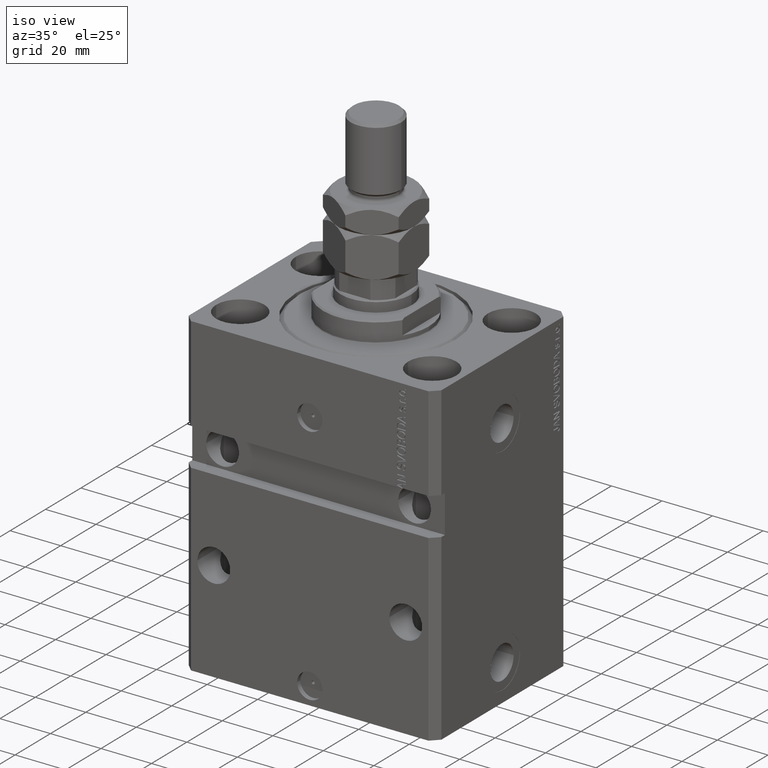
[diagram: clean part render]
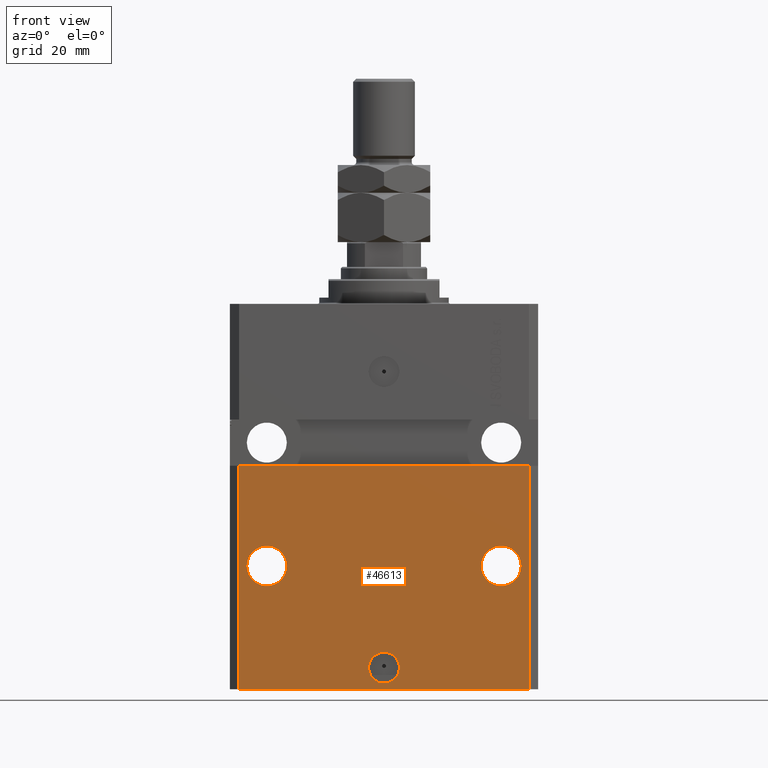
[diagram: tour spotlight — one face highlighted and labeled with its STEP entity id]
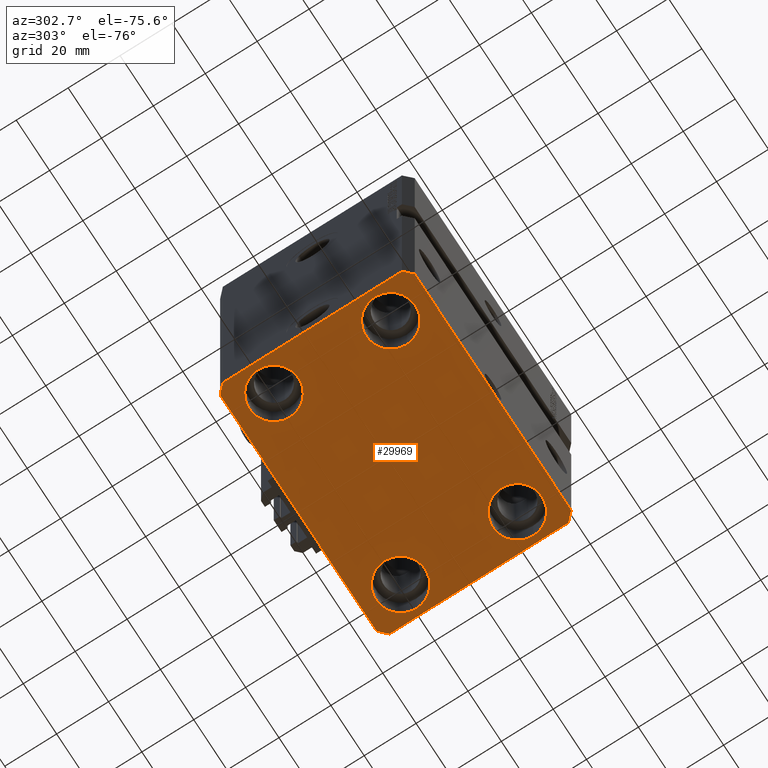
[diagram: tour spotlight — one face highlighted and labeled with its STEP entity id]
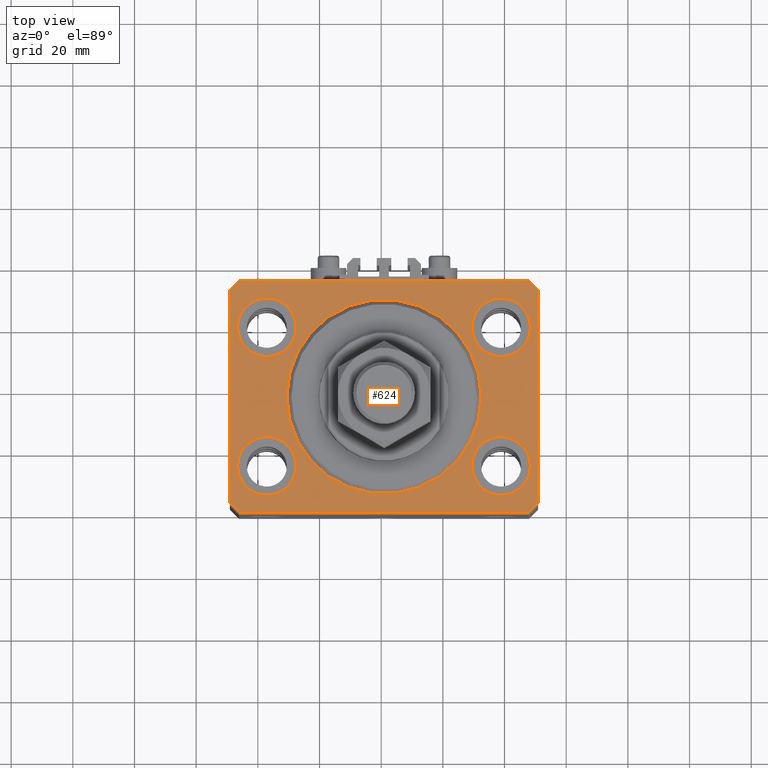
[diagram: tour spotlight — one face highlighted and labeled with its STEP entity id]
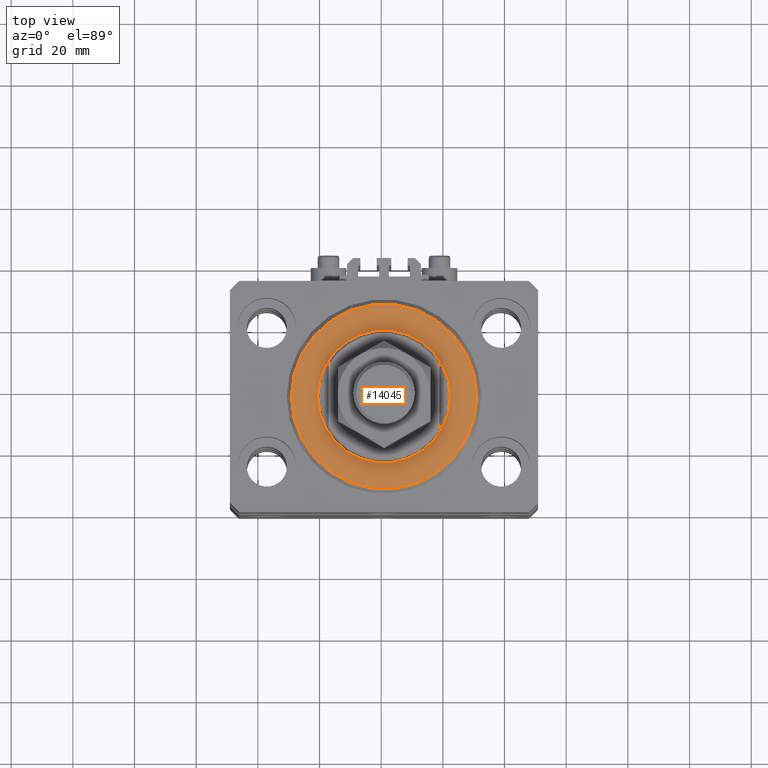
[diagram: tour spotlight — one face highlighted and labeled with its STEP entity id]
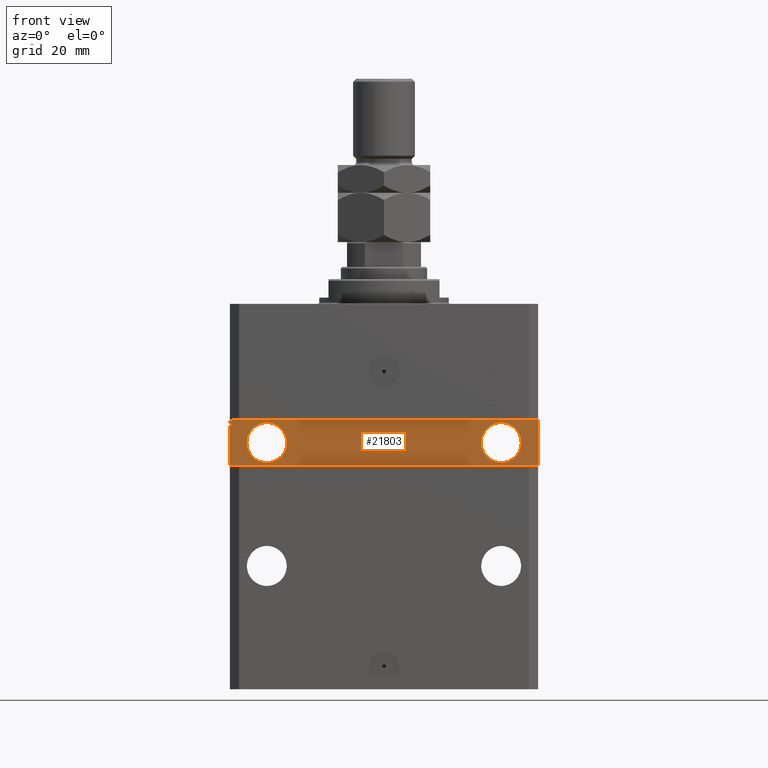
[diagram: tour spotlight — one face highlighted and labeled with its STEP entity id]
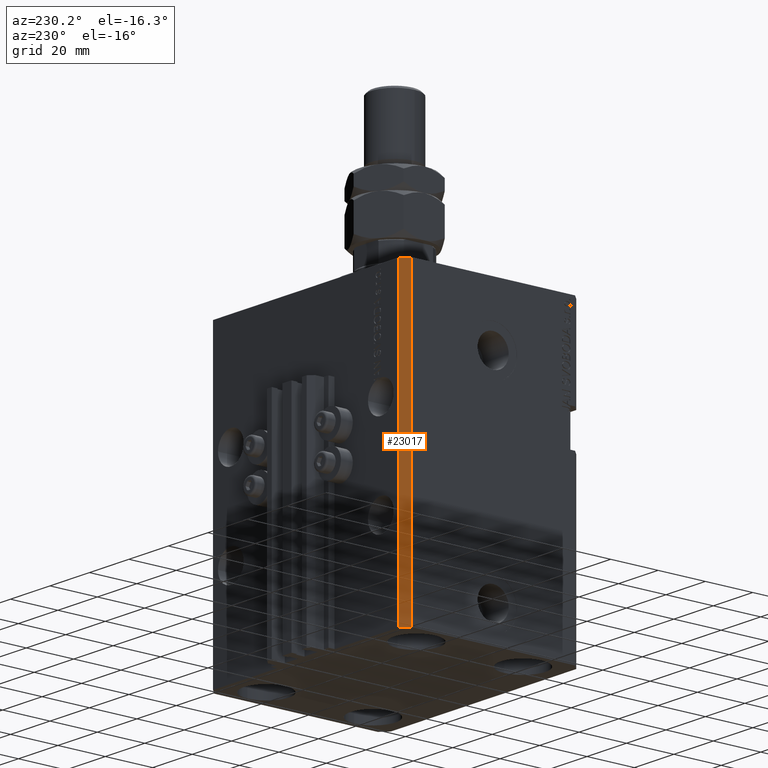
[diagram: tour spotlight — one face highlighted and labeled with its STEP entity id]
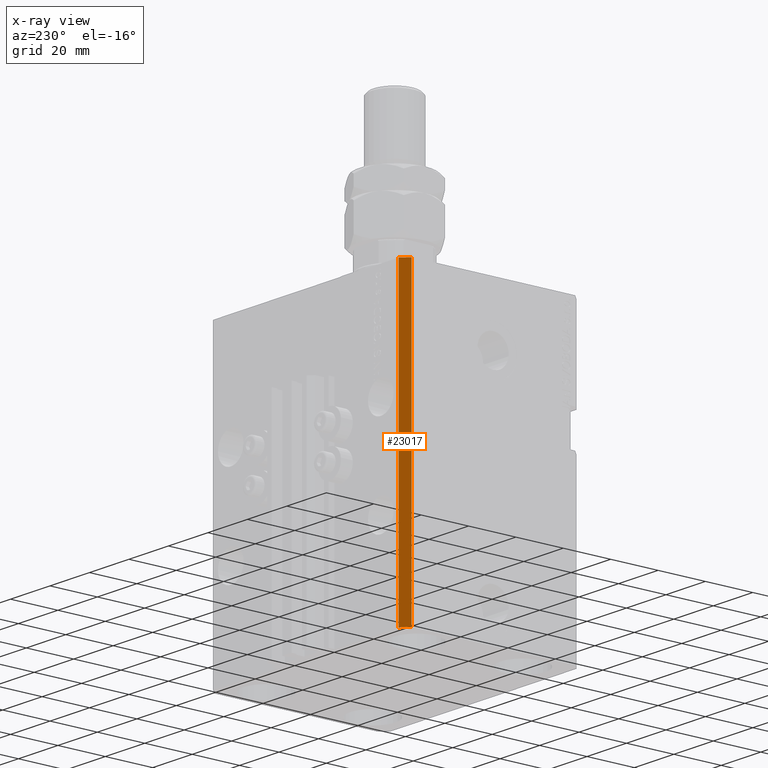
[diagram: x-ray of the same camera — body ghosted, this tour face saturated]
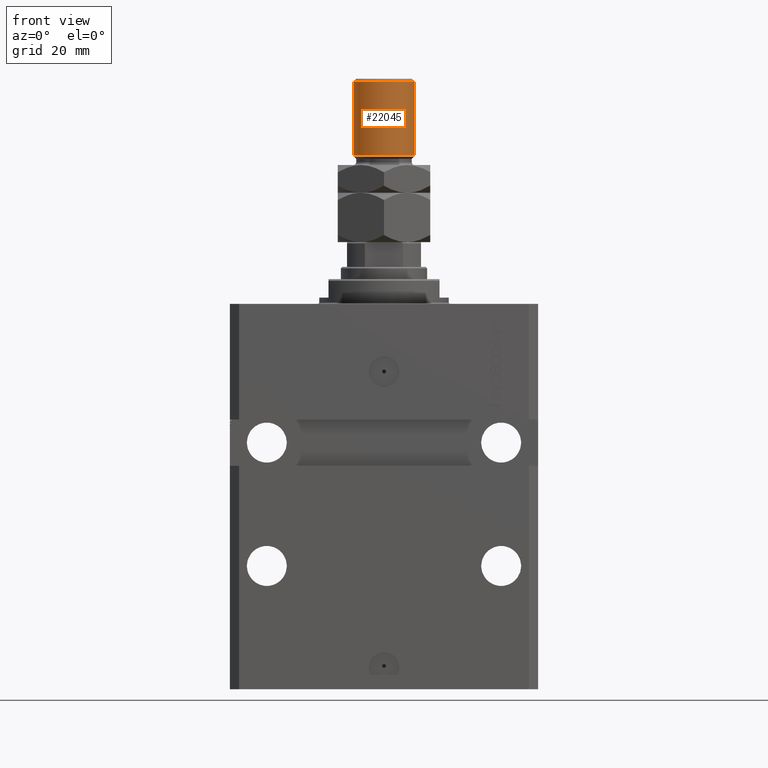
[diagram: tour spotlight — one face highlighted and labeled with its STEP entity id]
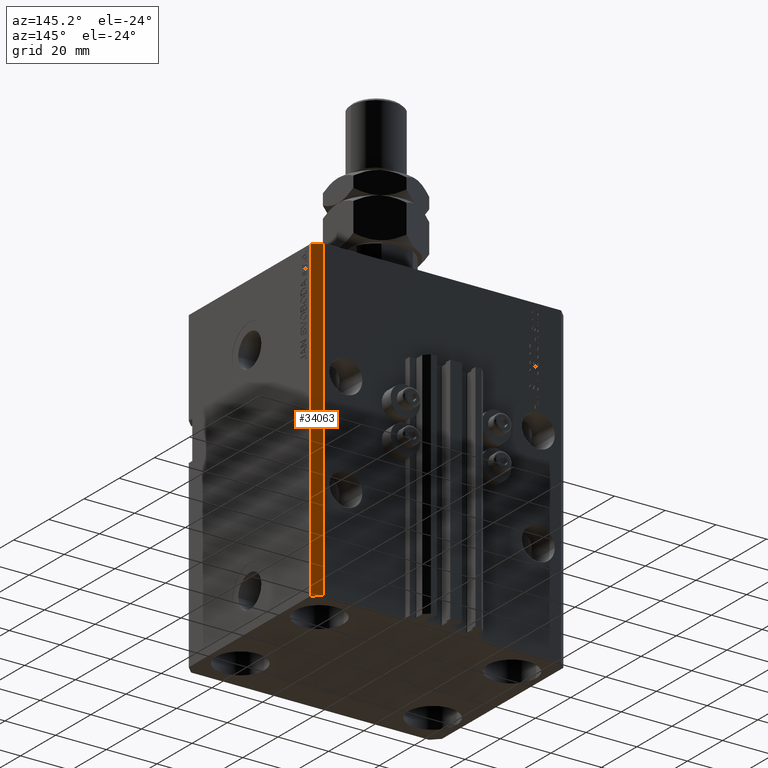
[diagram: tour spotlight — one face highlighted and labeled with its STEP entity id]
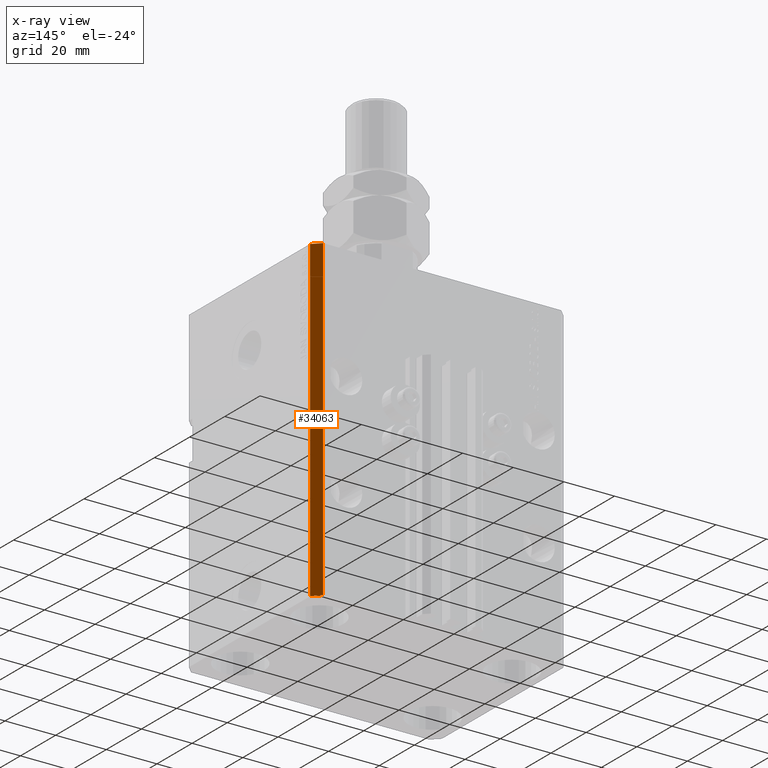
[diagram: x-ray of the same camera — body ghosted, this tour face saturated]
A machine part: a face-by-face anatomy tour. The part has 1173 B-rep faces; the first image is the clean iso view, then the 8 largest visible faces are spotlighted one at a time (largest first), each with its STEP entity span.

Face 1 — front view, entity #46613. In plain terms, the highlighted planar face has unit normal (-0, -1, 0).
Definition (entity closure, byte-faithful):
#1248 = DIRECTION ( 'NONE',  ( 1.176083712526788232E-16, -1.000000000000000000, 0.000000000000000000 ) ) ;
#1306 = EDGE_LOOP ( 'NONE', ( #32422, #24822, #3434, #7473 ) ) ;
#1341 = CARTESIAN_POINT ( 'NONE',  ( -5.536351519074916863E-15, -37.50000000000000000, -118.0000000000000000 ) ) ;
#2001 = EDGE_CURVE ( 'NONE', #43034, #32217, #4190, .T. ) ;
#3308 = CARTESIAN_POINT ( 'NONE',  ( -5.000000000000011546, -37.50000000000000000, -118.0000000000000000 ) ) ;
#3434 = ORIENTED_EDGE ( 'NONE', *, *, #2001, .T. ) ;
#3776 = ORIENTED_EDGE ( 'NONE', *, *, #9081, .F. ) ;
#3946 = DIRECTION ( 'NONE',  ( 1.000000000000000000, 0.000000000000000000, 0.000000000000000000 ) ) ;
#4190 = LINE ( 'NONE', #5191, #7760 ) ;
#4299 = LINE ( 'NONE', #26952, #47107 ) ;
#4826 = LINE ( 'NONE', #24152, #41173 ) ;
#5191 = CARTESIAN_POINT ( 'NONE',  ( -47.00000000000000000, -37.49999999999999289, -125.0000000000000000 ) ) ;
#6578 = VERTEX_POINT ( 'NONE', #11214 ) ;
#7039 = EDGE_CURVE ( 'NONE', #45402, #15054, #33009, .T. ) ;
#7473 = ORIENTED_EDGE ( 'NONE', *, *, #26392, .T. ) ;
#7638 = AXIS2_PLACEMENT_3D ( 'NONE', #1341, #24993, #32894 ) ;
#7760 = VECTOR ( 'NONE', #20209, 1000.000000000000000 ) ;
#7859 = AXIS2_PLACEMENT_3D ( 'NONE', #13552, #47878, #24714 ) ;
#8266 = DIRECTION ( 'NONE',  ( 1.176083712526788232E-16, -1.000000000000000000, 0.000000000000000000 ) ) ;
#8295 = EDGE_CURVE ( 'NONE', #30689, #6578, #41150, .T. ) ;
#8627 = EDGE_CURVE ( 'NONE', #6578, #30689, #33088, .T. ) ;
#9081 = EDGE_CURVE ( 'NONE', #42758, #28568, #11150, .T. ) ;
#9424 = FACE_BOUND ( 'NONE', #34187, .T. ) ;
#9684 = PLANE ( 'NONE',  #31509 ) ;
#10423 = AXIS2_PLACEMENT_3D ( 'NONE', #36464, #24740, #17114 ) ;
#11150 = CIRCLE ( 'NONE', #46091, 6.499999999999999112 ) ;
#11214 = CARTESIAN_POINT ( 'NONE',  ( 31.50000000000001421, -37.49999999999999289, -84.99999999999998579 ) ) ;
#11726 = EDGE_CURVE ( 'NONE', #28568, #42758, #31557, .T. ) ;
#12187 = CARTESIAN_POINT ( 'NONE',  ( 47.00000000000000000, -37.49999999999999289, -52.49999999999998579 ) ) ;
#13521 = FACE_OUTER_BOUND ( 'NONE', #1306, .T. ) ;
#13552 = CARTESIAN_POINT ( 'NONE',  ( 38.00000000000001421, -37.49999999999999289, -84.99999999999998579 ) ) ;
#14420 = CARTESIAN_POINT ( 'NONE',  ( -44.50000000000002842, -37.50000000000000711, -84.99999999999998579 ) ) ;
#15054 = VERTEX_POINT ( 'NONE', #3308 ) ;
#15406 = CARTESIAN_POINT ( 'NONE',  ( -5.536351519074916863E-15, -37.50000000000000000, -118.0000000000000000 ) ) ;
#16000 = DIRECTION ( 'NONE',  ( 0.000000000000000000, 0.000000000000000000, 1.000000000000000000 ) ) ;
#17114 = DIRECTION ( 'NONE',  ( -1.000000000000000000, 0.000000000000000000, 0.000000000000000000 ) ) ;
#17341 = EDGE_CURVE ( 'NONE', #43034, #41292, #46590, .T. ) ;
#17588 = VERTEX_POINT ( 'NONE', #12187 ) ;
#18104 = CARTESIAN_POINT ( 'NONE',  ( 44.50000000000001421, -37.49999999999999289, -84.99999999999998579 ) ) ;
#20209 = DIRECTION ( 'NONE',  ( 1.000000000000000000, -1.476360405086644309E-16, 0.000000000000000000 ) ) ;
#20398 = VECTOR ( 'NONE', #42768, 1000.000000000000000 ) ;
#20601 = DIRECTION ( 'NONE',  ( 1.000000000000000000, 1.387778780781445676E-16, 1.387778780781445676E-16 ) ) ;
#23248 = AXIS2_PLACEMENT_3D ( 'NONE', #15406, #8266, #3946 ) ;
#23810 = CARTESIAN_POINT ( 'NONE',  ( 47.00000000000000000, -37.50000000000000711, -125.0000000000000000 ) ) ;
#24152 = CARTESIAN_POINT ( 'NONE',  ( -50.00000000000001421, -37.50000000000000711, -52.50000000000000000 ) ) ;
#24714 = DIRECTION ( 'NONE',  ( 1.000000000000000000, 0.000000000000000000, 0.000000000000000000 ) ) ;
#24740 = DIRECTION ( 'NONE',  ( 1.176083712526788232E-16, -1.000000000000000000, 0.000000000000000000 ) ) ;
#24822 = ORIENTED_EDGE ( 'NONE', *, *, #17341, .F. ) ;
#24902 = CARTESIAN_POINT ( 'NONE',  ( 38.00000000000001421, -37.49999999999999289, -84.99999999999998579 ) ) ;
#24993 = DIRECTION ( 'NONE',  ( 1.176083712526788232E-16, -1.000000000000000000, 0.000000000000000000 ) ) ;
#25187 = CARTESIAN_POINT ( 'NONE',  ( -47.00000000000000000, -37.49999999999999289, -125.0000000000000000 ) ) ;
#25437 = DIRECTION ( 'NONE',  ( -1.476360405086644309E-16, -1.000000000000000000, 0.000000000000000000 ) ) ;
#26392 = EDGE_CURVE ( 'NONE', #32217, #17588, #4299, .T. ) ;
#26952 = CARTESIAN_POINT ( 'NONE',  ( 47.00000000000000000, -37.50000000000000711, -125.0000000000000000 ) ) ;
#27251 = CARTESIAN_POINT ( 'NONE',  ( -47.00000000000000000, -37.49999999999999289, -125.0000000000000000 ) ) ;
#27742 = ORIENTED_EDGE ( 'NONE', *, *, #35244, .F. ) ;
#28244 = FACE_BOUND ( 'NONE', #28527, .T. ) ;
#28527 = EDGE_LOOP ( 'NONE', ( #42378, #27742 ) ) ;
#28568 = VERTEX_POINT ( 'NONE', #14420 ) ;
#30689 = VERTEX_POINT ( 'NONE', #18104 ) ;
#31509 = AXIS2_PLACEMENT_3D ( 'NONE', #25187, #25437, #36149 ) ;
#31557 = CIRCLE ( 'NONE', #10423, 6.499999999999999112 ) ;
#32217 = VERTEX_POINT ( 'NONE', #23810 ) ;
#32422 = ORIENTED_EDGE ( 'NONE', *, *, #44622, .F. ) ;
#32436 = CARTESIAN_POINT ( 'NONE',  ( 5.000000000000000888, -37.50000000000000000, -118.0000000000000000 ) ) ;
#32894 = DIRECTION ( 'NONE',  ( 1.000000000000000000, 0.000000000000000000, 0.000000000000000000 ) ) ;
#33009 = CIRCLE ( 'NONE', #23248, 5.000000000000006217 ) ;
#33088 = CIRCLE ( 'NONE', #33882, 6.499999999999999112 ) ;
#33882 = AXIS2_PLACEMENT_3D ( 'NONE', #24902, #1248, #36629 ) ;
#34187 = EDGE_LOOP ( 'NONE', ( #3776, #45529 ) ) ;
#35006 = DIRECTION ( 'NONE',  ( 1.176083712526788232E-16, -1.000000000000000000, 0.000000000000000000 ) ) ;
#35244 = EDGE_CURVE ( 'NONE', #15054, #45402, #44988, .T. ) ;
#35901 = CARTESIAN_POINT ( 'NONE',  ( -46.99999999999998579, -37.50000000000000711, -52.50000000000000000 ) ) ;
#36129 = ORIENTED_EDGE ( 'NONE', *, *, #8627, .F. ) ;
#36149 = DIRECTION ( 'NONE',  ( 1.000000000000000000, -1.476360405086644309E-16, 0.000000000000000000 ) ) ;
#36403 = FACE_BOUND ( 'NONE', #42553, .T. ) ;
#36464 = CARTESIAN_POINT ( 'NONE',  ( -38.00000000000002842, -37.50000000000000711, -84.99999999999998579 ) ) ;
#36629 = DIRECTION ( 'NONE',  ( 1.000000000000000000, 0.000000000000000000, 0.000000000000000000 ) ) ;
#41150 = CIRCLE ( 'NONE', #7859, 6.499999999999999112 ) ;
#41173 = VECTOR ( 'NONE', #20601, 1000.000000000000000 ) ;
#41292 = VERTEX_POINT ( 'NONE', #35901 ) ;
#42144 = DIRECTION ( 'NONE',  ( -1.000000000000000000, 0.000000000000000000, 0.000000000000000000 ) ) ;
#42378 = ORIENTED_EDGE ( 'NONE', *, *, #7039, .F. ) ;
#42393 = CARTESIAN_POINT ( 'NONE',  ( -38.00000000000002842, -37.50000000000000711, -84.99999999999998579 ) ) ;
#42553 = EDGE_LOOP ( 'NONE', ( #48989, #36129 ) ) ;
#42758 = VERTEX_POINT ( 'NONE', #46992 ) ;
#42768 = DIRECTION ( 'NONE',  ( 0.000000000000000000, 0.000000000000000000, 1.000000000000000000 ) ) ;
#43034 = VERTEX_POINT ( 'NONE', #49749 ) ;
#44622 = EDGE_CURVE ( 'NONE', #41292, #17588, #4826, .T. ) ;
#44988 = CIRCLE ( 'NONE', #7638, 5.000000000000006217 ) ;
#45402 = VERTEX_POINT ( 'NONE', #32436 ) ;
#45529 = ORIENTED_EDGE ( 'NONE', *, *, #11726, .F. ) ;
#46091 = AXIS2_PLACEMENT_3D ( 'NONE', #42393, #35006, #42144 ) ;
#46590 = LINE ( 'NONE', #27251, #20398 ) ;
#46613 = ADVANCED_FACE ( 'NONE', ( #28244, #36403, #9424, #13521 ), #9684, .T. ) ;
#46992 = CARTESIAN_POINT ( 'NONE',  ( -31.50000000000002842, -37.50000000000000711, -84.99999999999998579 ) ) ;
#47107 = VECTOR ( 'NONE', #16000, 1000.000000000000000 ) ;
#47878 = DIRECTION ( 'NONE',  ( 1.176083712526788232E-16, -1.000000000000000000, 0.000000000000000000 ) ) ;
#48989 = ORIENTED_EDGE ( 'NONE', *, *, #8295, .F. ) ;
#49749 = CARTESIAN_POINT ( 'NONE',  ( -47.00000000000000000, -37.49999999999999289, -125.0000000000000000 ) ) ;

Face 2 — auxiliary view, entity #29969. In plain terms, the highlighted planar face has unit normal (0, 0, 1).
Definition (entity closure, byte-faithful):
#19 = VECTOR ( 'NONE', #45038, 1000.000000000000114 ) ;
#1329 = CIRCLE ( 'NONE', #2136, 9.500000000000001776 ) ;
#1606 = EDGE_CURVE ( 'NONE', #17387, #15214, #3757, .T. ) ;
#1712 = CARTESIAN_POINT ( 'NONE',  ( 28.50000000000000355, -22.50000000000000000, -125.0000000000000000 ) ) ;
#2001 = EDGE_CURVE ( 'NONE', #43034, #32217, #4190, .T. ) ;
#2136 = AXIS2_PLACEMENT_3D ( 'NONE', #33123, #45077, #48641 ) ;
#2162 = CARTESIAN_POINT ( 'NONE',  ( 38.00000000000000711, 22.50000000000001421, -125.0000000000000000 ) ) ;
#2320 = CARTESIAN_POINT ( 'NONE',  ( -38.00000000000000711, 22.50000000000000000, -125.0000000000000000 ) ) ;
#2946 = CARTESIAN_POINT ( 'NONE',  ( -28.50000000000000355, 22.50000000000000000, -125.0000000000000000 ) ) ;
#3691 = CARTESIAN_POINT ( 'NONE',  ( 47.00000000000056843, 37.49999999999999289, -125.0000000000000000 ) ) ;
#3712 = VECTOR ( 'NONE', #49557, 1000.000000000000000 ) ;
#3757 = LINE ( 'NONE', #10890, #3712 ) ;
#3965 = EDGE_CURVE ( 'NONE', #5443, #17387, #26860, .T. ) ;
#4130 = EDGE_CURVE ( 'NONE', #38070, #46577, #1329, .T. ) ;
#4190 = LINE ( 'NONE', #5191, #7760 ) ;
#4609 = CIRCLE ( 'NONE', #20040, 9.500000000000001776 ) ;
#4841 = CARTESIAN_POINT ( 'NONE',  ( -28.50000000000000355, -22.50000000000000000, -125.0000000000000000 ) ) ;
#5191 = CARTESIAN_POINT ( 'NONE',  ( -47.00000000000000000, -37.49999999999999289, -125.0000000000000000 ) ) ;
#5443 = VERTEX_POINT ( 'NONE', #8621 ) ;
#5626 = ORIENTED_EDGE ( 'NONE', *, *, #8894, .F. ) ;
#5666 = DIRECTION ( 'NONE',  ( 1.000000000000000000, 0.000000000000000000, 0.000000000000000000 ) ) ;
#5907 = ORIENTED_EDGE ( 'NONE', *, *, #34497, .T. ) ;
#6129 = VERTEX_POINT ( 'NONE', #2946 ) ;
#6728 = FACE_BOUND ( 'NONE', #12168, .T. ) ;
#6954 = DIRECTION ( 'NONE',  ( -0.000000000000000000, -0.000000000000000000, 1.000000000000000000 ) ) ;
#7572 = EDGE_CURVE ( 'NONE', #43158, #6129, #4609, .T. ) ;
#7602 = CIRCLE ( 'NONE', #47414, 9.500000000000001776 ) ;
#7650 = ORIENTED_EDGE ( 'NONE', *, *, #1606, .F. ) ;
#7760 = VECTOR ( 'NONE', #20209, 1000.000000000000000 ) ;
#7995 = VECTOR ( 'NONE', #39521, 1000.000000000000114 ) ;
#8346 = CARTESIAN_POINT ( 'NONE',  ( 50.00000000000000000, -34.50000000000000711, -125.0000000000000000 ) ) ;
#8488 = LINE ( 'NONE', #23989, #7995 ) ;
#8621 = CARTESIAN_POINT ( 'NONE',  ( -47.00000000000001421, 37.50000000000000000, -125.0000000000000000 ) ) ;
#8894 = EDGE_CURVE ( 'NONE', #36883, #19422, #47755, .T. ) ;
#9508 = VECTOR ( 'NONE', #16467, 1000.000000000000000 ) ;
#9790 = FACE_BOUND ( 'NONE', #11331, .T. ) ;
#9805 = DIRECTION ( 'NONE',  ( 1.000000000000000000, 0.000000000000000000, 0.000000000000000000 ) ) ;
#10890 = CARTESIAN_POINT ( 'NONE',  ( -50.00000000000001421, 34.50000000000000000, -125.0000000000000000 ) ) ;
#11043 = DIRECTION ( 'NONE',  ( 0.000000000000000000, 0.000000000000000000, 1.000000000000000000 ) ) ;
#11179 = CARTESIAN_POINT ( 'NONE',  ( -50.00000000000001421, 34.50000000000000000, -125.0000000000000000 ) ) ;
#11331 = EDGE_LOOP ( 'NONE', ( #13285, #38264 ) ) ;
#11332 = LINE ( 'NONE', #3691, #28552 ) ;
#11405 = EDGE_CURVE ( 'NONE', #28104, #37505, #24233, .T. ) ;
#11812 = EDGE_CURVE ( 'NONE', #15214, #43034, #8488, .T. ) ;
#11941 = DIRECTION ( 'NONE',  ( 1.000000000000000000, 0.000000000000000000, 0.000000000000000000 ) ) ;
#12168 = EDGE_LOOP ( 'NONE', ( #40268, #21778 ) ) ;
#12441 = DIRECTION ( 'NONE',  ( -0.000000000000000000, -0.000000000000000000, 1.000000000000000000 ) ) ;
#13096 = CARTESIAN_POINT ( 'NONE',  ( -47.50000000000000711, 22.50000000000000000, -125.0000000000000000 ) ) ;
#13285 = ORIENTED_EDGE ( 'NONE', *, *, #7572, .T. ) ;
#13624 = FACE_BOUND ( 'NONE', #27582, .T. ) ;
#13785 = DIRECTION ( 'NONE',  ( 1.000000000000000000, 0.000000000000000000, 0.000000000000000000 ) ) ;
#13819 = DIRECTION ( 'NONE',  ( -0.000000000000000000, -0.000000000000000000, 1.000000000000000000 ) ) ;
#13846 = CIRCLE ( 'NONE', #34973, 9.500000000000001776 ) ;
#13870 = FACE_OUTER_BOUND ( 'NONE', #28875, .T. ) ;
#13962 = AXIS2_PLACEMENT_3D ( 'NONE', #40833, #11043, #26554 ) ;
#14930 = EDGE_CURVE ( 'NONE', #50183, #33689, #46300, .T. ) ;
#15214 = VERTEX_POINT ( 'NONE', #32024 ) ;
#15774 = EDGE_CURVE ( 'NONE', #6129, #43158, #13846, .T. ) ;
#16367 = CARTESIAN_POINT ( 'NONE',  ( 50.00000000000051870, 34.49999999999995026, -125.0000000000000000 ) ) ;
#16467 = DIRECTION ( 'NONE',  ( 7.441712302741091634E-15, 1.000000000000000000, 0.000000000000000000 ) ) ;
#17387 = VERTEX_POINT ( 'NONE', #11179 ) ;
#17583 = DIRECTION ( 'NONE',  ( -0.000000000000000000, -0.000000000000000000, 1.000000000000000000 ) ) ;
#18085 = DIRECTION ( 'NONE',  ( 1.000000000000000000, 0.000000000000000000, 0.000000000000000000 ) ) ;
#18244 = EDGE_CURVE ( 'NONE', #19422, #35515, #47399, .T. ) ;
#18561 = AXIS2_PLACEMENT_3D ( 'NONE', #2162, #48470, #9805 ) ;
#19422 = VERTEX_POINT ( 'NONE', #38800 ) ;
#19428 = CARTESIAN_POINT ( 'NONE',  ( 50.00000000000000000, -34.50000000000000711, -125.0000000000000000 ) ) ;
#20040 = AXIS2_PLACEMENT_3D ( 'NONE', #2320, #17583, #29538 ) ;
#20209 = DIRECTION ( 'NONE',  ( 1.000000000000000000, -1.476360405086644309E-16, 0.000000000000000000 ) ) ;
#20709 = EDGE_CURVE ( 'NONE', #46577, #38070, #44770, .T. ) ;
#21500 = EDGE_CURVE ( 'NONE', #35515, #5443, #11332, .T. ) ;
#21778 = ORIENTED_EDGE ( 'NONE', *, *, #14930, .T. ) ;
#22098 = ORIENTED_EDGE ( 'NONE', *, *, #21500, .F. ) ;
#22467 = DIRECTION ( 'NONE',  ( 1.000000000000000000, 0.000000000000000000, 0.000000000000000000 ) ) ;
#22876 = EDGE_LOOP ( 'NONE', ( #28384, #34141 ) ) ;
#23794 = CARTESIAN_POINT ( 'NONE',  ( 47.50000000000000711, 22.50000000000001421, -125.0000000000000000 ) ) ;
#23810 = CARTESIAN_POINT ( 'NONE',  ( 47.00000000000000000, -37.50000000000000711, -125.0000000000000000 ) ) ;
#23989 = CARTESIAN_POINT ( 'NONE',  ( -50.00000000000000000, -34.50000000000000000, -125.0000000000000000 ) ) ;
#24233 = CIRCLE ( 'NONE', #18561, 9.500000000000001776 ) ;
#24612 = CARTESIAN_POINT ( 'NONE',  ( 38.00000000000000711, 22.50000000000001421, -125.0000000000000000 ) ) ;
#25293 = PLANE ( 'NONE',  #13962 ) ;
#25714 = DIRECTION ( 'NONE',  ( -0.000000000000000000, -0.000000000000000000, 1.000000000000000000 ) ) ;
#26554 = DIRECTION ( 'NONE',  ( 1.000000000000000000, 0.000000000000000000, -0.000000000000000000 ) ) ;
#26860 = LINE ( 'NONE', #30691, #46817 ) ;
#27402 = VECTOR ( 'NONE', #28490, 1000.000000000000000 ) ;
#27582 = EDGE_LOOP ( 'NONE', ( #30253, #5907 ) ) ;
#28104 = VERTEX_POINT ( 'NONE', #49943 ) ;
#28252 = CARTESIAN_POINT ( 'NONE',  ( 47.00000000000056843, 37.49999999999999289, -125.0000000000000000 ) ) ;
#28384 = ORIENTED_EDGE ( 'NONE', *, *, #20709, .T. ) ;
#28490 = DIRECTION ( 'NONE',  ( 0.7071067811865483499, 0.7071067811865466846, 0.000000000000000000 ) ) ;
#28552 = VECTOR ( 'NONE', #34233, 1000.000000000000000 ) ;
#28875 = EDGE_LOOP ( 'NONE', ( #22098, #46816, #5626, #45049, #48893, #34444, #7650, #38947 ) ) ;
#29538 = DIRECTION ( 'NONE',  ( 1.000000000000000000, 0.000000000000000000, 0.000000000000000000 ) ) ;
#29969 = ADVANCED_FACE ( 'NONE', ( #41574, #6728, #13624, #9790, #13870 ), #25293, .F. ) ;
#30145 = AXIS2_PLACEMENT_3D ( 'NONE', #48631, #25714, #18085 ) ;
#30253 = ORIENTED_EDGE ( 'NONE', *, *, #11405, .T. ) ;
#30683 = CIRCLE ( 'NONE', #41241, 9.500000000000001776 ) ;
#30691 = CARTESIAN_POINT ( 'NONE',  ( -47.00000000000001421, 37.50000000000000000, -125.0000000000000000 ) ) ;
#32024 = CARTESIAN_POINT ( 'NONE',  ( -50.00000000000000000, -34.50000000000000000, -125.0000000000000000 ) ) ;
#32217 = VERTEX_POINT ( 'NONE', #23810 ) ;
#32379 = CARTESIAN_POINT ( 'NONE',  ( 38.00000000000000711, -22.50000000000000000, -125.0000000000000000 ) ) ;
#33123 = CARTESIAN_POINT ( 'NONE',  ( -38.00000000000000711, -22.50000000000000000, -125.0000000000000000 ) ) ;
#33343 = DIRECTION ( 'NONE',  ( -0.000000000000000000, -0.000000000000000000, 1.000000000000000000 ) ) ;
#33403 = CARTESIAN_POINT ( 'NONE',  ( 47.50000000000000711, -22.50000000000000000, -125.0000000000000000 ) ) ;
#33689 = VERTEX_POINT ( 'NONE', #1712 ) ;
#33913 = CARTESIAN_POINT ( 'NONE',  ( -38.00000000000000711, 22.50000000000000000, -125.0000000000000000 ) ) ;
#34102 = AXIS2_PLACEMENT_3D ( 'NONE', #36925, #33343, #13785 ) ;
#34141 = ORIENTED_EDGE ( 'NONE', *, *, #4130, .T. ) ;
#34233 = DIRECTION ( 'NONE',  ( -1.000000000000000000, 7.381802025433175941E-17, 0.000000000000000000 ) ) ;
#34444 = ORIENTED_EDGE ( 'NONE', *, *, #11812, .F. ) ;
#34497 = EDGE_CURVE ( 'NONE', #37505, #28104, #7602, .T. ) ;
#34973 = AXIS2_PLACEMENT_3D ( 'NONE', #33913, #6954, #22467 ) ;
#35515 = VERTEX_POINT ( 'NONE', #28252 ) ;
#36883 = VERTEX_POINT ( 'NONE', #19428 ) ;
#36925 = CARTESIAN_POINT ( 'NONE',  ( 38.00000000000000711, -22.50000000000000000, -125.0000000000000000 ) ) ;
#37505 = VERTEX_POINT ( 'NONE', #23794 ) ;
#38070 = VERTEX_POINT ( 'NONE', #4841 ) ;
#38264 = ORIENTED_EDGE ( 'NONE', *, *, #15774, .T. ) ;
#38800 = CARTESIAN_POINT ( 'NONE',  ( 50.00000000000051870, 34.49999999999995026, -125.0000000000000000 ) ) ;
#38947 = ORIENTED_EDGE ( 'NONE', *, *, #3965, .F. ) ;
#39521 = DIRECTION ( 'NONE',  ( 0.7071067811865491270, -0.7071067811865459074, 0.000000000000000000 ) ) ;
#40213 = LINE ( 'NONE', #44525, #27402 ) ;
#40268 = ORIENTED_EDGE ( 'NONE', *, *, #45694, .T. ) ;
#40833 = CARTESIAN_POINT ( 'NONE',  ( 0.000000000000000000, 0.000000000000000000, -125.0000000000000000 ) ) ;
#41241 = AXIS2_PLACEMENT_3D ( 'NONE', #32379, #13819, #5666 ) ;
#41574 = FACE_BOUND ( 'NONE', #22876, .T. ) ;
#42391 = DIRECTION ( 'NONE',  ( -0.7071067811865483499, -0.7071067811865466846, 0.000000000000000000 ) ) ;
#43034 = VERTEX_POINT ( 'NONE', #49749 ) ;
#43158 = VERTEX_POINT ( 'NONE', #13096 ) ;
#43506 = CARTESIAN_POINT ( 'NONE',  ( -47.50000000000000711, -22.50000000000000000, -125.0000000000000000 ) ) ;
#44525 = CARTESIAN_POINT ( 'NONE',  ( 47.00000000000000000, -37.50000000000000711, -125.0000000000000000 ) ) ;
#44770 = CIRCLE ( 'NONE', #30145, 9.500000000000001776 ) ;
#45038 = DIRECTION ( 'NONE',  ( -0.7071067811865361374, 0.7071067811865588970, 0.000000000000000000 ) ) ;
#45049 = ORIENTED_EDGE ( 'NONE', *, *, #45921, .F. ) ;
#45077 = DIRECTION ( 'NONE',  ( -0.000000000000000000, -0.000000000000000000, 1.000000000000000000 ) ) ;
#45694 = EDGE_CURVE ( 'NONE', #33689, #50183, #30683, .T. ) ;
#45921 = EDGE_CURVE ( 'NONE', #32217, #36883, #40213, .T. ) ;
#46300 = CIRCLE ( 'NONE', #34102, 9.500000000000001776 ) ;
#46577 = VERTEX_POINT ( 'NONE', #43506 ) ;
#46816 = ORIENTED_EDGE ( 'NONE', *, *, #18244, .F. ) ;
#46817 = VECTOR ( 'NONE', #42391, 1000.000000000000000 ) ;
#47399 = LINE ( 'NONE', #16367, #19 ) ;
#47414 = AXIS2_PLACEMENT_3D ( 'NONE', #24612, #12441, #11941 ) ;
#47755 = LINE ( 'NONE', #8346, #9508 ) ;
#48470 = DIRECTION ( 'NONE',  ( -0.000000000000000000, -0.000000000000000000, 1.000000000000000000 ) ) ;
#48631 = CARTESIAN_POINT ( 'NONE',  ( -38.00000000000000711, -22.50000000000000000, -125.0000000000000000 ) ) ;
#48641 = DIRECTION ( 'NONE',  ( 1.000000000000000000, 0.000000000000000000, 0.000000000000000000 ) ) ;
#48893 = ORIENTED_EDGE ( 'NONE', *, *, #2001, .F. ) ;
#49557 = DIRECTION ( 'NONE',  ( 2.011273595335428326E-16, -1.000000000000000000, 0.000000000000000000 ) ) ;
#49749 = CARTESIAN_POINT ( 'NONE',  ( -47.00000000000000000, -37.49999999999999289, -125.0000000000000000 ) ) ;
#49943 = CARTESIAN_POINT ( 'NONE',  ( 28.50000000000000355, 22.50000000000001421, -125.0000000000000000 ) ) ;
#50183 = VERTEX_POINT ( 'NONE', #33403 ) ;

Face 3 — top view, entity #624. In plain terms, the highlighted planar face has unit normal (0, 0, 1).
Definition (entity closure, byte-faithful):
#57 = LINE ( 'NONE', #11780, #27237 ) ;
#624 = ADVANCED_FACE ( 'NONE', ( #28996, #37391, #2529, #17289, #36641, #29255 ), #5600, .T. ) ;
#740 = ORIENTED_EDGE ( 'NONE', *, *, #5020, .F. ) ;
#746 = DIRECTION ( 'NONE',  ( -1.000000000000000000, 7.381802025433175941E-17, 0.000000000000000000 ) ) ;
#1001 = DIRECTION ( 'NONE',  ( 1.000000000000000000, 0.000000000000000000, 0.000000000000000000 ) ) ;
#2204 = VECTOR ( 'NONE', #48960, 1000.000000000000000 ) ;
#2271 = EDGE_CURVE ( 'NONE', #28895, #4862, #57, .T. ) ;
#2529 = FACE_BOUND ( 'NONE', #21280, .T. ) ;
#3015 = ORIENTED_EDGE ( 'NONE', *, *, #2271, .T. ) ;
#3332 = VERTEX_POINT ( 'NONE', #44823 ) ;
#3559 = EDGE_CURVE ( 'NONE', #4862, #47554, #40442, .T. ) ;
#4862 = VERTEX_POINT ( 'NONE', #48545 ) ;
#5020 = EDGE_CURVE ( 'NONE', #46370, #44499, #40358, .T. ) ;
#5588 = CARTESIAN_POINT ( 'NONE',  ( 50.00000000000000000, -34.50000000000000711, 0.000000000000000000 ) ) ;
#5600 = PLANE ( 'NONE',  #31276 ) ;
#6331 = ORIENTED_EDGE ( 'NONE', *, *, #45318, .T. ) ;
#6577 = AXIS2_PLACEMENT_3D ( 'NONE', #39433, #46818, #8397 ) ;
#7922 = CARTESIAN_POINT ( 'NONE',  ( -47.00000000000001421, 37.50000000000000000, 0.000000000000000000 ) ) ;
#8033 = CIRCLE ( 'NONE', #14531, 9.500000000000001776 ) ;
#8075 = DIRECTION ( 'NONE',  ( 1.000000000000000000, 0.000000000000000000, 0.000000000000000000 ) ) ;
#8397 = DIRECTION ( 'NONE',  ( 1.000000000000000000, 0.000000000000000000, 0.000000000000000000 ) ) ;
#8516 = CARTESIAN_POINT ( 'NONE',  ( 47.50000000000000711, -22.50000000000000000, 0.000000000000000000 ) ) ;
#8825 = EDGE_LOOP ( 'NONE', ( #42175, #31577, #6331, #48186, #45809, #3015, #31037, #20896 ) ) ;
#9289 = DIRECTION ( 'NONE',  ( 0.000000000000000000, 0.000000000000000000, 1.000000000000000000 ) ) ;
#9903 = ORIENTED_EDGE ( 'NONE', *, *, #35346, .F. ) ;
#10170 = CARTESIAN_POINT ( 'NONE',  ( 50.00000000000051870, 34.49999999999995026, 0.000000000000000000 ) ) ;
#10285 = CARTESIAN_POINT ( 'NONE',  ( 28.50000000000000355, 22.50000000000001421, 0.000000000000000000 ) ) ;
#10607 = DIRECTION ( 'NONE',  ( 0.7071067811865491270, -0.7071067811865459074, 0.000000000000000000 ) ) ;
#10942 = VERTEX_POINT ( 'NONE', #32505 ) ;
#11170 = EDGE_CURVE ( 'NONE', #18286, #28895, #38347, .T. ) ;
#11729 = EDGE_CURVE ( 'NONE', #23772, #37927, #29930, .T. ) ;
#11780 = CARTESIAN_POINT ( 'NONE',  ( 47.00000000000000000, -37.50000000000000711, 0.000000000000000000 ) ) ;
#11820 = CARTESIAN_POINT ( 'NONE',  ( -47.50000000000000711, -22.50000000000000000, 0.000000000000000000 ) ) ;
#11885 = EDGE_LOOP ( 'NONE', ( #29610, #41742 ) ) ;
#11987 = DIRECTION ( 'NONE',  ( -0.7071067811865483499, -0.7071067811865466846, 0.000000000000000000 ) ) ;
#12937 = CARTESIAN_POINT ( 'NONE',  ( -47.00000000000001421, 37.50000000000000000, 0.000000000000000000 ) ) ;
#12996 = DIRECTION ( 'NONE',  ( 0.000000000000000000, 0.000000000000000000, 1.000000000000000000 ) ) ;
#13191 = EDGE_CURVE ( 'NONE', #44499, #46370, #8033, .T. ) ;
#14111 = ORIENTED_EDGE ( 'NONE', *, *, #45380, .F. ) ;
#14531 = AXIS2_PLACEMENT_3D ( 'NONE', #34020, #15690, #23071 ) ;
#15690 = DIRECTION ( 'NONE',  ( 0.000000000000000000, 0.000000000000000000, 1.000000000000000000 ) ) ;
#15723 = AXIS2_PLACEMENT_3D ( 'NONE', #44389, #9289, #25046 ) ;
#15886 = CARTESIAN_POINT ( 'NONE',  ( 47.00000000000056843, 37.49999999999999289, 0.000000000000000000 ) ) ;
#16118 = AXIS2_PLACEMENT_3D ( 'NONE', #35955, #39772, #31885 ) ;
#16334 = DIRECTION ( 'NONE',  ( 0.7071067811865483499, 0.7071067811865466846, 0.000000000000000000 ) ) ;
#16510 = CARTESIAN_POINT ( 'NONE',  ( 50.00000000000051870, 34.49999999999995026, 0.000000000000000000 ) ) ;
#16781 = CARTESIAN_POINT ( 'NONE',  ( -38.00000000000000711, -22.50000000000000000, 0.000000000000000000 ) ) ;
#17107 = DIRECTION ( 'NONE',  ( 0.000000000000000000, 0.000000000000000000, 1.000000000000000000 ) ) ;
#17289 = FACE_BOUND ( 'NONE', #11885, .T. ) ;
#17933 = CIRCLE ( 'NONE', #6577, 9.500000000000001776 ) ;
#18075 = AXIS2_PLACEMENT_3D ( 'NONE', #34842, #23384, #38909 ) ;
#18286 = VERTEX_POINT ( 'NONE', #49604 ) ;
#18437 = AXIS2_PLACEMENT_3D ( 'NONE', #25040, #21746, #40586 ) ;
#19242 = AXIS2_PLACEMENT_3D ( 'NONE', #16781, #32058, #1001 ) ;
#19461 = VERTEX_POINT ( 'NONE', #15886 ) ;
#19860 = EDGE_LOOP ( 'NONE', ( #14111, #31766 ) ) ;
#20896 = ORIENTED_EDGE ( 'NONE', *, *, #31049, .T. ) ;
#21108 = DIRECTION ( 'NONE',  ( 7.441712302741091634E-15, 1.000000000000000000, 0.000000000000000000 ) ) ;
#21280 = EDGE_LOOP ( 'NONE', ( #740, #34124 ) ) ;
#21532 = CARTESIAN_POINT ( 'NONE',  ( -28.50000000000000355, -22.50000000000000000, 0.000000000000000000 ) ) ;
#21746 = DIRECTION ( 'NONE',  ( 0.000000000000000000, 0.000000000000000000, 1.000000000000000000 ) ) ;
#22144 = ORIENTED_EDGE ( 'NONE', *, *, #33915, .F. ) ;
#22872 = LINE ( 'NONE', #10170, #41624 ) ;
#23071 = DIRECTION ( 'NONE',  ( 1.000000000000000000, 0.000000000000000000, 0.000000000000000000 ) ) ;
#23384 = DIRECTION ( 'NONE',  ( 0.000000000000000000, 0.000000000000000000, 1.000000000000000000 ) ) ;
#23431 = LINE ( 'NONE', #7922, #39394 ) ;
#23448 = VECTOR ( 'NONE', #746, 1000.000000000000000 ) ;
#23772 = VERTEX_POINT ( 'NONE', #29613 ) ;
#23902 = CARTESIAN_POINT ( 'NONE',  ( 47.00000000000056843, 37.49999999999999289, 0.000000000000000000 ) ) ;
#25040 = CARTESIAN_POINT ( 'NONE',  ( 38.00000000000000711, -22.50000000000000000, 0.000000000000000000 ) ) ;
#25046 = DIRECTION ( 'NONE',  ( 1.000000000000000000, 0.000000000000000000, 0.000000000000000000 ) ) ;
#25307 = EDGE_LOOP ( 'NONE', ( #33524, #29263 ) ) ;
#25442 = CIRCLE ( 'NONE', #15723, 31.50000000000000000 ) ;
#25845 = VECTOR ( 'NONE', #46472, 1000.000000000000000 ) ;
#26322 = CIRCLE ( 'NONE', #36903, 31.50000000000000000 ) ;
#26512 = DIRECTION ( 'NONE',  ( 0.000000000000000000, 0.000000000000000000, 1.000000000000000000 ) ) ;
#26563 = CIRCLE ( 'NONE', #19242, 9.500000000000001776 ) ;
#27237 = VECTOR ( 'NONE', #16334, 1000.000000000000000 ) ;
#27810 = VERTEX_POINT ( 'NONE', #8516 ) ;
#27839 = CIRCLE ( 'NONE', #18075, 9.500000000000001776 ) ;
#28147 = EDGE_CURVE ( 'NONE', #37927, #23772, #17933, .T. ) ;
#28363 = CARTESIAN_POINT ( 'NONE',  ( -31.50000000000000000, 3.857637417314162689E-15, 0.000000000000000000 ) ) ;
#28734 = CARTESIAN_POINT ( 'NONE',  ( 0.000000000000000000, 0.000000000000000000, 0.000000000000000000 ) ) ;
#28895 = VERTEX_POINT ( 'NONE', #29867 ) ;
#28979 = AXIS2_PLACEMENT_3D ( 'NONE', #39104, #39601, #8075 ) ;
#28996 = FACE_BOUND ( 'NONE', #25307, .T. ) ;
#29255 = FACE_OUTER_BOUND ( 'NONE', #8825, .T. ) ;
#29263 = ORIENTED_EDGE ( 'NONE', *, *, #31956, .F. ) ;
#29321 = CARTESIAN_POINT ( 'NONE',  ( 38.00000000000000711, -22.50000000000000000, 0.000000000000000000 ) ) ;
#29610 = ORIENTED_EDGE ( 'NONE', *, *, #28147, .F. ) ;
#29613 = CARTESIAN_POINT ( 'NONE',  ( -47.50000000000000711, 22.50000000000000000, 0.000000000000000000 ) ) ;
#29867 = CARTESIAN_POINT ( 'NONE',  ( 47.00000000000000000, -37.50000000000000711, 0.000000000000000000 ) ) ;
#29930 = CIRCLE ( 'NONE', #16118, 9.500000000000001776 ) ;
#29943 = LINE ( 'NONE', #45455, #33072 ) ;
#30960 = CARTESIAN_POINT ( 'NONE',  ( -47.00000000000000000, -37.49999999999999289, 0.000000000000000000 ) ) ;
#31037 = ORIENTED_EDGE ( 'NONE', *, *, #3559, .T. ) ;
#31049 = EDGE_CURVE ( 'NONE', #47554, #19461, #22872, .T. ) ;
#31276 = AXIS2_PLACEMENT_3D ( 'NONE', #28734, #12996, #36387 ) ;
#31577 = ORIENTED_EDGE ( 'NONE', *, *, #37244, .T. ) ;
#31766 = ORIENTED_EDGE ( 'NONE', *, *, #45552, .F. ) ;
#31885 = DIRECTION ( 'NONE',  ( 1.000000000000000000, 0.000000000000000000, 0.000000000000000000 ) ) ;
#31956 = EDGE_CURVE ( 'NONE', #32446, #47039, #27839, .T. ) ;
#32058 = DIRECTION ( 'NONE',  ( 0.000000000000000000, 0.000000000000000000, 1.000000000000000000 ) ) ;
#32446 = VERTEX_POINT ( 'NONE', #11820 ) ;
#32505 = CARTESIAN_POINT ( 'NONE',  ( -50.00000000000000000, -34.50000000000000000, 0.000000000000000000 ) ) ;
#33072 = VECTOR ( 'NONE', #10607, 1000.000000000000114 ) ;
#33524 = ORIENTED_EDGE ( 'NONE', *, *, #44687, .F. ) ;
#33619 = VERTEX_POINT ( 'NONE', #12937 ) ;
#33630 = CARTESIAN_POINT ( 'NONE',  ( 31.50000000000000000, 0.000000000000000000, 0.000000000000000000 ) ) ;
#33915 = EDGE_CURVE ( 'NONE', #45993, #45800, #25442, .T. ) ;
#34020 = CARTESIAN_POINT ( 'NONE',  ( 38.00000000000000711, 22.50000000000001421, 0.000000000000000000 ) ) ;
#34124 = ORIENTED_EDGE ( 'NONE', *, *, #13191, .F. ) ;
#34842 = CARTESIAN_POINT ( 'NONE',  ( -38.00000000000000711, -22.50000000000000000, 0.000000000000000000 ) ) ;
#35346 = EDGE_CURVE ( 'NONE', #45800, #45993, #26322, .T. ) ;
#35614 = LINE ( 'NONE', #23902, #23448 ) ;
#35955 = CARTESIAN_POINT ( 'NONE',  ( -38.00000000000000711, 22.50000000000000000, 0.000000000000000000 ) ) ;
#36387 = DIRECTION ( 'NONE',  ( 1.000000000000000000, 0.000000000000000000, -0.000000000000000000 ) ) ;
#36641 = FACE_BOUND ( 'NONE', #48835, .T. ) ;
#36903 = AXIS2_PLACEMENT_3D ( 'NONE', #46107, #26512, #42291 ) ;
#37090 = VECTOR ( 'NONE', #21108, 1000.000000000000000 ) ;
#37244 = EDGE_CURVE ( 'NONE', #33619, #38739, #23431, .T. ) ;
#37391 = FACE_BOUND ( 'NONE', #19860, .T. ) ;
#37927 = VERTEX_POINT ( 'NONE', #45845 ) ;
#38347 = LINE ( 'NONE', #30960, #25845 ) ;
#38739 = VERTEX_POINT ( 'NONE', #40961 ) ;
#38909 = DIRECTION ( 'NONE',  ( 1.000000000000000000, 0.000000000000000000, 0.000000000000000000 ) ) ;
#39104 = CARTESIAN_POINT ( 'NONE',  ( 38.00000000000000711, 22.50000000000001421, 0.000000000000000000 ) ) ;
#39394 = VECTOR ( 'NONE', #11987, 1000.000000000000000 ) ;
#39433 = CARTESIAN_POINT ( 'NONE',  ( -38.00000000000000711, 22.50000000000000000, 0.000000000000000000 ) ) ;
#39601 = DIRECTION ( 'NONE',  ( 0.000000000000000000, 0.000000000000000000, 1.000000000000000000 ) ) ;
#39772 = DIRECTION ( 'NONE',  ( 0.000000000000000000, 0.000000000000000000, 1.000000000000000000 ) ) ;
#40270 = DIRECTION ( 'NONE',  ( 1.000000000000000000, 0.000000000000000000, 0.000000000000000000 ) ) ;
#40358 = CIRCLE ( 'NONE', #28979, 9.500000000000001776 ) ;
#40378 = CIRCLE ( 'NONE', #18437, 9.500000000000001776 ) ;
#40410 = AXIS2_PLACEMENT_3D ( 'NONE', #29321, #17107, #40270 ) ;
#40442 = LINE ( 'NONE', #5588, #37090 ) ;
#40586 = DIRECTION ( 'NONE',  ( 1.000000000000000000, 0.000000000000000000, 0.000000000000000000 ) ) ;
#40961 = CARTESIAN_POINT ( 'NONE',  ( -50.00000000000001421, 34.50000000000000000, 0.000000000000000000 ) ) ;
#41082 = CARTESIAN_POINT ( 'NONE',  ( -50.00000000000001421, 34.50000000000000000, 0.000000000000000000 ) ) ;
#41624 = VECTOR ( 'NONE', #41963, 1000.000000000000114 ) ;
#41742 = ORIENTED_EDGE ( 'NONE', *, *, #11729, .F. ) ;
#41963 = DIRECTION ( 'NONE',  ( -0.7071067811865361374, 0.7071067811865588970, 0.000000000000000000 ) ) ;
#42049 = CIRCLE ( 'NONE', #40410, 9.500000000000001776 ) ;
#42175 = ORIENTED_EDGE ( 'NONE', *, *, #48729, .T. ) ;
#42291 = DIRECTION ( 'NONE',  ( 1.000000000000000000, 0.000000000000000000, 0.000000000000000000 ) ) ;
#44389 = CARTESIAN_POINT ( 'NONE',  ( 0.000000000000000000, 0.000000000000000000, 0.000000000000000000 ) ) ;
#44499 = VERTEX_POINT ( 'NONE', #10285 ) ;
#44640 = LINE ( 'NONE', #41082, #2204 ) ;
#44687 = EDGE_CURVE ( 'NONE', #47039, #32446, #26563, .T. ) ;
#44823 = CARTESIAN_POINT ( 'NONE',  ( 28.50000000000000355, -22.50000000000000000, 0.000000000000000000 ) ) ;
#45157 = EDGE_CURVE ( 'NONE', #10942, #18286, #29943, .T. ) ;
#45318 = EDGE_CURVE ( 'NONE', #38739, #10942, #44640, .T. ) ;
#45380 = EDGE_CURVE ( 'NONE', #27810, #3332, #40378, .T. ) ;
#45455 = CARTESIAN_POINT ( 'NONE',  ( -50.00000000000000000, -34.50000000000000000, 0.000000000000000000 ) ) ;
#45552 = EDGE_CURVE ( 'NONE', #3332, #27810, #42049, .T. ) ;
#45800 = VERTEX_POINT ( 'NONE', #33630 ) ;
#45809 = ORIENTED_EDGE ( 'NONE', *, *, #11170, .T. ) ;
#45845 = CARTESIAN_POINT ( 'NONE',  ( -28.50000000000000355, 22.50000000000000000, 0.000000000000000000 ) ) ;
#45993 = VERTEX_POINT ( 'NONE', #28363 ) ;
#46107 = CARTESIAN_POINT ( 'NONE',  ( 0.000000000000000000, 0.000000000000000000, 0.000000000000000000 ) ) ;
#46370 = VERTEX_POINT ( 'NONE', #48400 ) ;
#46472 = DIRECTION ( 'NONE',  ( 1.000000000000000000, -1.476360405086644309E-16, 0.000000000000000000 ) ) ;
#46818 = DIRECTION ( 'NONE',  ( 0.000000000000000000, 0.000000000000000000, 1.000000000000000000 ) ) ;
#47039 = VERTEX_POINT ( 'NONE', #21532 ) ;
#47554 = VERTEX_POINT ( 'NONE', #16510 ) ;
#48186 = ORIENTED_EDGE ( 'NONE', *, *, #45157, .T. ) ;
#48400 = CARTESIAN_POINT ( 'NONE',  ( 47.50000000000000711, 22.50000000000001421, 0.000000000000000000 ) ) ;
#48545 = CARTESIAN_POINT ( 'NONE',  ( 50.00000000000000000, -34.50000000000000711, 0.000000000000000000 ) ) ;
#48729 = EDGE_CURVE ( 'NONE', #19461, #33619, #35614, .T. ) ;
#48835 = EDGE_LOOP ( 'NONE', ( #9903, #22144 ) ) ;
#48960 = DIRECTION ( 'NONE',  ( 2.011273595335428326E-16, -1.000000000000000000, 0.000000000000000000 ) ) ;
#49604 = CARTESIAN_POINT ( 'NONE',  ( -47.00000000000000000, -37.49999999999999289, 0.000000000000000000 ) ) ;

Face 4 — top view, entity #14045. In plain terms, the highlighted planar face has unit normal (0, 0, -1).
Definition (entity closure, byte-faithful):
#1470 = CARTESIAN_POINT ( 'NONE',  ( 0.000000000000000000, 0.000000000000000000, 0.000000000000000000 ) ) ;
#1559 = CARTESIAN_POINT ( 'NONE',  ( 21.50000000000000000, 0.000000000000000000, -2.168404344971008868E-16 ) ) ;
#2367 = VERTEX_POINT ( 'NONE', #1559 ) ;
#2908 = ORIENTED_EDGE ( 'NONE', *, *, #35408, .T. ) ;
#4391 = AXIS2_PLACEMENT_3D ( 'NONE', #23455, #46609, #38729 ) ;
#5716 = CARTESIAN_POINT ( 'NONE',  ( -29.99999999999999289, 3.765788907378110539E-15, 0.000000000000000000 ) ) ;
#9103 = DIRECTION ( 'NONE',  ( -0.000000000000000000, -0.000000000000000000, -1.000000000000000000 ) ) ;
#9176 = PLANE ( 'NONE',  #47889 ) ;
#10387 = AXIS2_PLACEMENT_3D ( 'NONE', #16984, #9103, #13697 ) ;
#10626 = DIRECTION ( 'NONE',  ( 1.000000000000000000, 0.000000000000000000, -0.000000000000000000 ) ) ;
#10902 = EDGE_CURVE ( 'NONE', #44362, #13682, #20151, .T. ) ;
#11700 = ORIENTED_EDGE ( 'NONE', *, *, #31995, .T. ) ;
#12712 = DIRECTION ( 'NONE',  ( 0.000000000000000000, 0.000000000000000000, 1.000000000000000000 ) ) ;
#13682 = VERTEX_POINT ( 'NONE', #45097 ) ;
#13697 = DIRECTION ( 'NONE',  ( 1.000000000000000000, 0.000000000000000000, 0.000000000000000000 ) ) ;
#14045 = ADVANCED_FACE ( 'NONE', ( #48609, #40478 ), #9176, .F. ) ;
#16984 = CARTESIAN_POINT ( 'NONE',  ( 0.000000000000000000, 0.000000000000000000, 0.000000000000000000 ) ) ;
#17271 = CIRCLE ( 'NONE', #22151, 29.99999999999999289 ) ;
#20039 = EDGE_CURVE ( 'NONE', #2367, #38515, #20353, .T. ) ;
#20151 = CIRCLE ( 'NONE', #10387, 29.99999999999999289 ) ;
#20353 = CIRCLE ( 'NONE', #48798, 21.50000000000000000 ) ;
#21320 = DIRECTION ( 'NONE',  ( 1.000000000000000000, 0.000000000000000000, 0.000000000000000000 ) ) ;
#22151 = AXIS2_PLACEMENT_3D ( 'NONE', #1470, #25372, #21320 ) ;
#22501 = EDGE_LOOP ( 'NONE', ( #41049, #2908 ) ) ;
#23455 = CARTESIAN_POINT ( 'NONE',  ( 0.000000000000000000, 0.000000000000000000, 0.000000000000000000 ) ) ;
#25372 = DIRECTION ( 'NONE',  ( -0.000000000000000000, -0.000000000000000000, -1.000000000000000000 ) ) ;
#27739 = CARTESIAN_POINT ( 'NONE',  ( -21.50000000000000000, 2.632990618166809630E-15, -2.168404344971008868E-16 ) ) ;
#27952 = DIRECTION ( 'NONE',  ( 1.000000000000000000, 0.000000000000000000, 0.000000000000000000 ) ) ;
#29277 = DIRECTION ( 'NONE',  ( 0.000000000000000000, 0.000000000000000000, 1.000000000000000000 ) ) ;
#29671 = EDGE_LOOP ( 'NONE', ( #11700, #41249 ) ) ;
#31995 = EDGE_CURVE ( 'NONE', #13682, #44362, #17271, .T. ) ;
#35408 = EDGE_CURVE ( 'NONE', #38515, #2367, #39325, .T. ) ;
#38515 = VERTEX_POINT ( 'NONE', #27739 ) ;
#38729 = DIRECTION ( 'NONE',  ( 1.000000000000000000, 0.000000000000000000, 0.000000000000000000 ) ) ;
#39325 = CIRCLE ( 'NONE', #4391, 21.50000000000000000 ) ;
#40478 = FACE_OUTER_BOUND ( 'NONE', #29671, .T. ) ;
#41049 = ORIENTED_EDGE ( 'NONE', *, *, #20039, .T. ) ;
#41249 = ORIENTED_EDGE ( 'NONE', *, *, #10902, .T. ) ;
#43458 = CARTESIAN_POINT ( 'NONE',  ( 0.000000000000000000, 0.000000000000000000, 0.000000000000000000 ) ) ;
#44362 = VERTEX_POINT ( 'NONE', #5716 ) ;
#45097 = CARTESIAN_POINT ( 'NONE',  ( 29.99999999999999289, 0.000000000000000000, 0.000000000000000000 ) ) ;
#46609 = DIRECTION ( 'NONE',  ( 0.000000000000000000, 0.000000000000000000, 1.000000000000000000 ) ) ;
#47889 = AXIS2_PLACEMENT_3D ( 'NONE', #48351, #29277, #10626 ) ;
#48351 = CARTESIAN_POINT ( 'NONE',  ( 0.000000000000000000, 0.000000000000000000, 0.000000000000000000 ) ) ;
#48609 = FACE_BOUND ( 'NONE', #22501, .T. ) ;
#48798 = AXIS2_PLACEMENT_3D ( 'NONE', #43458, #12712, #27952 ) ;

Face 5 — front view, entity #21803. In plain terms, the highlighted planar face has unit normal (0, -1, 0).
Definition (entity closure, byte-faithful):
#292 = CARTESIAN_POINT ( 'NONE',  ( -49.50000000000001421, -32.50000000000001421, -38.87066340383893959 ) ) ;
#731 = VERTEX_POINT ( 'NONE', #41703 ) ;
#787 = VERTEX_POINT ( 'NONE', #28167 ) ;
#1324 = VECTOR ( 'NONE', #24136, 1000.000000000000000 ) ;
#1387 = VECTOR ( 'NONE', #3603, 1000.000000000000000 ) ;
#2542 = CIRCLE ( 'NONE', #8218, 6.499999999999999112 ) ;
#2890 = VECTOR ( 'NONE', #35281, 1000.000000000000000 ) ;
#3133 = VERTEX_POINT ( 'NONE', #34432 ) ;
#3140 = AXIS2_PLACEMENT_3D ( 'NONE', #17589, #33115, #30056 ) ;
#3364 = ORIENTED_EDGE ( 'NONE', *, *, #14860, .F. ) ;
#3603 = DIRECTION ( 'NONE',  ( -1.000000000000000000, -1.387778780781445676E-16, -1.387778780781445676E-16 ) ) ;
#3707 = VERTEX_POINT ( 'NONE', #8345 ) ;
#4051 = DIRECTION ( 'NONE',  ( 1.000000000000000000, 0.000000000000000000, 0.000000000000000000 ) ) ;
#4160 = AXIS2_PLACEMENT_3D ( 'NONE', #30348, #45870, #34169 ) ;
#4573 = ORIENTED_EDGE ( 'NONE', *, *, #26913, .T. ) ;
#5293 = EDGE_CURVE ( 'NONE', #35695, #19076, #13088, .T. ) ;
#5891 = LINE ( 'NONE', #41748, #25703 ) ;
#6007 = CARTESIAN_POINT ( 'NONE',  ( -50.00000000000001421, -32.50000000000000711, -39.43474002179300442 ) ) ;
#6024 = ORIENTED_EDGE ( 'NONE', *, *, #40681, .F. ) ;
#6496 = DIRECTION ( 'NONE',  ( 1.000000000000000000, 1.387778780781445676E-16, 1.387778780781445676E-16 ) ) ;
#6933 = AXIS2_PLACEMENT_3D ( 'NONE', #22830, #14454, #30221 ) ;
#7494 = EDGE_CURVE ( 'NONE', #3707, #19669, #5891, .T. ) ;
#7797 = EDGE_CURVE ( 'NONE', #21433, #3133, #32036, .T. ) ;
#8128 = DIRECTION ( 'NONE',  ( 8.806446732139697737E-17, -1.000000000000000000, 1.232595164407830672E-32 ) ) ;
#8218 = AXIS2_PLACEMENT_3D ( 'NONE', #38697, #49643, #23174 ) ;
#8345 = CARTESIAN_POINT ( 'NONE',  ( -50.00000000000001421, -32.50000000000000711, -37.50000000000000711 ) ) ;
#8990 = ORIENTED_EDGE ( 'NONE', *, *, #45798, .T. ) ;
#10255 = CARTESIAN_POINT ( 'NONE',  ( -50.00000000000001421, -32.50000000000000711, -37.62144886363636687 ) ) ;
#10341 = LINE ( 'NONE', #40881, #24668 ) ;
#10736 = CARTESIAN_POINT ( 'NONE',  ( 49.99999999999999289, -32.49999999999999289, -37.49999999999999289 ) ) ;
#11008 = ORIENTED_EDGE ( 'NONE', *, *, #48627, .F. ) ;
#11472 = LINE ( 'NONE', #15290, #28520 ) ;
#11614 = VERTEX_POINT ( 'NONE', #15135 ) ;
#11804 = CIRCLE ( 'NONE', #6933, 6.499999999999999112 ) ;
#12038 = ORIENTED_EDGE ( 'NONE', *, *, #29303, .F. ) ;
#13088 = LINE ( 'NONE', #48169, #49282 ) ;
#13405 = CARTESIAN_POINT ( 'NONE',  ( 49.99999999999999289, -32.49999999999999289, -52.49999999999998579 ) ) ;
#13657 = LINE ( 'NONE', #13405, #26861 ) ;
#14454 = DIRECTION ( 'NONE',  ( 1.101411730780568590E-16, -1.000000000000000000, 0.000000000000000000 ) ) ;
#14842 = FACE_OUTER_BOUND ( 'NONE', #41414, .T. ) ;
#14860 = EDGE_CURVE ( 'NONE', #731, #18214, #19642, .T. ) ;
#15135 = CARTESIAN_POINT ( 'NONE',  ( -49.50000000000000711, -32.50000000000000711, -37.62144886363635976 ) ) ;
#15290 = CARTESIAN_POINT ( 'NONE',  ( -50.00000000000001421, -32.50000000000000711, -37.50000000000000711 ) ) ;
#15826 = DIRECTION ( 'NONE',  ( -1.000000000000000000, -0.000000000000000000, -0.000000000000000000 ) ) ;
#15868 = ORIENTED_EDGE ( 'NONE', *, *, #28046, .T. ) ;
#16059 = CARTESIAN_POINT ( 'NONE',  ( 49.99999999999999289, -32.49999999999999289, -52.49999999999998579 ) ) ;
#16963 = DIRECTION ( 'NONE',  ( 3.791485858024926499E-13, 5.261743621399925654E-29, 1.000000000000000000 ) ) ;
#17017 = CARTESIAN_POINT ( 'NONE',  ( -49.50000000000001421, -32.50000000000000711, -39.43474002179300442 ) ) ;
#17589 = CARTESIAN_POINT ( 'NONE',  ( 38.00000000000001421, -32.50000000000000000, -45.00000000000000000 ) ) ;
#17974 = ORIENTED_EDGE ( 'NONE', *, *, #19256, .T. ) ;
#18214 = VERTEX_POINT ( 'NONE', #25436 ) ;
#18647 = ORIENTED_EDGE ( 'NONE', *, *, #5293, .T. ) ;
#18685 = CARTESIAN_POINT ( 'NONE',  ( -44.49999999999998579, -32.50000000000000711, -45.00000000000000711 ) ) ;
#19076 = VERTEX_POINT ( 'NONE', #47787 ) ;
#19256 = EDGE_CURVE ( 'NONE', #39403, #19271, #13657, .T. ) ;
#19271 = VERTEX_POINT ( 'NONE', #28133 ) ;
#19404 = ORIENTED_EDGE ( 'NONE', *, *, #41879, .T. ) ;
#19592 = DIRECTION ( 'NONE',  ( 0.000000000000000000, 0.000000000000000000, -1.000000000000000000 ) ) ;
#19642 = LINE ( 'NONE', #292, #22731 ) ;
#19669 = VERTEX_POINT ( 'NONE', #10255 ) ;
#19841 = CARTESIAN_POINT ( 'NONE',  ( -50.00000000000001421, -32.50000000000000711, -37.50000000000000711 ) ) ;
#20206 = CIRCLE ( 'NONE', #3140, 6.499999999999999112 ) ;
#20763 = EDGE_CURVE ( 'NONE', #21433, #25215, #11472, .T. ) ;
#21398 = LINE ( 'NONE', #32593, #24645 ) ;
#21433 = VERTEX_POINT ( 'NONE', #6007 ) ;
#21769 = CARTESIAN_POINT ( 'NONE',  ( -50.00000000000001421, -32.50000000000000711, -52.50000000000000000 ) ) ;
#21803 = ADVANCED_FACE ( 'NONE', ( #22964, #21956, #14842 ), #26776, .T. ) ;
#21956 = FACE_BOUND ( 'NONE', #30269, .T. ) ;
#22343 = ORIENTED_EDGE ( 'NONE', *, *, #7494, .T. ) ;
#22479 = DIRECTION ( 'NONE',  ( 0.000000000000000000, 0.000000000000000000, -1.000000000000000000 ) ) ;
#22731 = VECTOR ( 'NONE', #15826, 1000.000000000000000 ) ;
#22830 = CARTESIAN_POINT ( 'NONE',  ( -37.99999999999998579, -32.50000000000000711, -45.00000000000000711 ) ) ;
#22964 = FACE_BOUND ( 'NONE', #43341, .T. ) ;
#23174 = DIRECTION ( 'NONE',  ( 1.000000000000000000, 0.000000000000000000, 0.000000000000000000 ) ) ;
#23657 = LINE ( 'NONE', #19841, #27666 ) ;
#23778 = CARTESIAN_POINT ( 'NONE',  ( -49.50000000000000711, -32.50000000000000711, -37.99999999999999289 ) ) ;
#23904 = EDGE_CURVE ( 'NONE', #11614, #19669, #21398, .T. ) ;
#24136 = DIRECTION ( 'NONE',  ( 1.000000000000000000, 0.000000000000000000, 0.000000000000000000 ) ) ;
#24568 = VERTEX_POINT ( 'NONE', #18685 ) ;
#24645 = VECTOR ( 'NONE', #48109, 1000.000000000000000 ) ;
#24668 = VECTOR ( 'NONE', #16963, 1000.000000000000000 ) ;
#24774 = AXIS2_PLACEMENT_3D ( 'NONE', #43208, #8128, #4051 ) ;
#25215 = VERTEX_POINT ( 'NONE', #49346 ) ;
#25436 = CARTESIAN_POINT ( 'NONE',  ( -50.00000000000001421, -32.50000000000000711, -38.87066340383893959 ) ) ;
#25473 = ORIENTED_EDGE ( 'NONE', *, *, #20763, .T. ) ;
#25703 = VECTOR ( 'NONE', #41243, 1000.000000000000000 ) ;
#26776 = PLANE ( 'NONE',  #4160 ) ;
#26861 = VECTOR ( 'NONE', #48489, 1000.000000000000000 ) ;
#26913 = EDGE_CURVE ( 'NONE', #25215, #39403, #44919, .T. ) ;
#27666 = VECTOR ( 'NONE', #22479, 1000.000000000000000 ) ;
#28046 = EDGE_CURVE ( 'NONE', #19076, #18214, #23657, .T. ) ;
#28133 = CARTESIAN_POINT ( 'NONE',  ( 49.99999999999999289, -32.49999999999999289, -37.49999999999999289 ) ) ;
#28167 = CARTESIAN_POINT ( 'NONE',  ( 44.50000000000001421, -32.50000000000000000, -45.00000000000000000 ) ) ;
#28520 = VECTOR ( 'NONE', #19592, 1000.000000000000000 ) ;
#28732 = VERTEX_POINT ( 'NONE', #36241 ) ;
#28847 = CIRCLE ( 'NONE', #24774, 6.499999999999999112 ) ;
#29303 = EDGE_CURVE ( 'NONE', #38472, #24568, #2542, .T. ) ;
#30056 = DIRECTION ( 'NONE',  ( 1.000000000000000000, 0.000000000000000000, 0.000000000000000000 ) ) ;
#30221 = DIRECTION ( 'NONE',  ( 1.000000000000000000, 0.000000000000000000, 0.000000000000000000 ) ) ;
#30269 = EDGE_LOOP ( 'NONE', ( #12038, #6024 ) ) ;
#30348 = CARTESIAN_POINT ( 'NONE',  ( 4.616128571667027759E-15, -32.50000000000000000, 0.000000000000000000 ) ) ;
#31817 = CARTESIAN_POINT ( 'NONE',  ( -31.49999999999998579, -32.50000000000000711, -45.00000000000000711 ) ) ;
#32036 = LINE ( 'NONE', #17017, #1324 ) ;
#32593 = CARTESIAN_POINT ( 'NONE',  ( -49.50000000000000711, -32.49999999999999289, -37.62144886363635976 ) ) ;
#33115 = DIRECTION ( 'NONE',  ( 8.806446732139697737E-17, -1.000000000000000000, 1.232595164407830672E-32 ) ) ;
#34169 = DIRECTION ( 'NONE',  ( 1.000000000000000000, 1.387778780781445676E-16, 0.000000000000000000 ) ) ;
#34432 = CARTESIAN_POINT ( 'NONE',  ( -49.49999999999999289, -32.50000000000000711, -39.43474004052496440 ) ) ;
#35281 = DIRECTION ( 'NONE',  ( 0.000000000000000000, 0.000000000000000000, -1.000000000000000000 ) ) ;
#35695 = VERTEX_POINT ( 'NONE', #23778 ) ;
#35739 = ORIENTED_EDGE ( 'NONE', *, *, #41468, .F. ) ;
#36241 = CARTESIAN_POINT ( 'NONE',  ( 31.50000000000001421, -32.50000000000000000, -45.00000000000000000 ) ) ;
#38356 = EDGE_CURVE ( 'NONE', #3133, #731, #10341, .T. ) ;
#38472 = VERTEX_POINT ( 'NONE', #31817 ) ;
#38697 = CARTESIAN_POINT ( 'NONE',  ( -37.99999999999998579, -32.50000000000000711, -45.00000000000000711 ) ) ;
#39403 = VERTEX_POINT ( 'NONE', #16059 ) ;
#40651 = VECTOR ( 'NONE', #6496, 1000.000000000000000 ) ;
#40681 = EDGE_CURVE ( 'NONE', #24568, #38472, #11804, .T. ) ;
#40749 = ORIENTED_EDGE ( 'NONE', *, *, #7797, .F. ) ;
#40881 = CARTESIAN_POINT ( 'NONE',  ( -49.50000000000016342, -32.50000000000000711, -39.86910993535713743 ) ) ;
#41243 = DIRECTION ( 'NONE',  ( 0.000000000000000000, 0.000000000000000000, -1.000000000000000000 ) ) ;
#41414 = EDGE_LOOP ( 'NONE', ( #15868, #3364, #45565, #40749, #25473, #4573, #17974, #8990, #22343, #46048, #19404, #18647 ) ) ;
#41468 = EDGE_CURVE ( 'NONE', #28732, #787, #28847, .T. ) ;
#41703 = CARTESIAN_POINT ( 'NONE',  ( -49.49999999999977973, -32.50000000000000711, -38.87066337907741342 ) ) ;
#41748 = CARTESIAN_POINT ( 'NONE',  ( -50.00000000000001421, -32.50000000000000711, -37.50000000000000711 ) ) ;
#41879 = EDGE_CURVE ( 'NONE', #11614, #35695, #42419, .T. ) ;
#42419 = LINE ( 'NONE', #50297, #2890 ) ;
#43208 = CARTESIAN_POINT ( 'NONE',  ( 38.00000000000001421, -32.50000000000000000, -45.00000000000000000 ) ) ;
#43341 = EDGE_LOOP ( 'NONE', ( #11008, #35739 ) ) ;
#44919 = LINE ( 'NONE', #21769, #40651 ) ;
#45565 = ORIENTED_EDGE ( 'NONE', *, *, #38356, .F. ) ;
#45798 = EDGE_CURVE ( 'NONE', #19271, #3707, #49660, .T. ) ;
#45870 = DIRECTION ( 'NONE',  ( 1.387778780781445676E-16, -1.000000000000000000, 0.000000000000000000 ) ) ;
#46048 = ORIENTED_EDGE ( 'NONE', *, *, #23904, .F. ) ;
#47787 = CARTESIAN_POINT ( 'NONE',  ( -50.00000000000001421, -32.50000000000000711, -37.99999999999999289 ) ) ;
#48109 = DIRECTION ( 'NONE',  ( -1.000000000000000000, -0.000000000000000000, -0.000000000000000000 ) ) ;
#48169 = CARTESIAN_POINT ( 'NONE',  ( -49.50000000000000711, -32.49999999999999289, -37.99999999999999289 ) ) ;
#48489 = DIRECTION ( 'NONE',  ( 0.000000000000000000, 0.000000000000000000, 1.000000000000000000 ) ) ;
#48627 = EDGE_CURVE ( 'NONE', #787, #28732, #20206, .T. ) ;
#49113 = DIRECTION ( 'NONE',  ( -1.000000000000000000, -0.000000000000000000, -0.000000000000000000 ) ) ;
#49282 = VECTOR ( 'NONE', #49113, 1000.000000000000000 ) ;
#49346 = CARTESIAN_POINT ( 'NONE',  ( -50.00000000000001421, -32.50000000000000711, -52.50000000000000000 ) ) ;
#49643 = DIRECTION ( 'NONE',  ( 1.101411730780568590E-16, -1.000000000000000000, 0.000000000000000000 ) ) ;
#49660 = LINE ( 'NONE', #10736, #1387 ) ;
#50297 = CARTESIAN_POINT ( 'NONE',  ( -49.50000000000000711, -32.49999999999999289, -37.62144886363635976 ) ) ;

Face 6 — auxiliary view, entity #23017. An x-ray twin of the same camera follows (body ghosted, this face saturated) — the face is partly hidden behind the body. In plain terms, the highlighted planar face has unit normal (-0.7071, 0.7071, 0).
Definition (entity closure, byte-faithful):
#794 = LINE ( 'NONE', #16329, #29369 ) ;
#1240 = DIRECTION ( 'NONE',  ( -0.7071067811865483499, -0.7071067811865466846, 0.000000000000000000 ) ) ;
#3965 = EDGE_CURVE ( 'NONE', #5443, #17387, #26860, .T. ) ;
#5443 = VERTEX_POINT ( 'NONE', #8621 ) ;
#5580 = DIRECTION ( 'NONE',  ( -0.7071067811865466846, 0.7071067811865483499, 0.000000000000000000 ) ) ;
#6051 = DIRECTION ( 'NONE',  ( 0.000000000000000000, 0.000000000000000000, 1.000000000000000000 ) ) ;
#7922 = CARTESIAN_POINT ( 'NONE',  ( -47.00000000000001421, 37.50000000000000000, 0.000000000000000000 ) ) ;
#8621 = CARTESIAN_POINT ( 'NONE',  ( -47.00000000000001421, 37.50000000000000000, -125.0000000000000000 ) ) ;
#11179 = CARTESIAN_POINT ( 'NONE',  ( -50.00000000000001421, 34.50000000000000000, -125.0000000000000000 ) ) ;
#11987 = DIRECTION ( 'NONE',  ( -0.7071067811865483499, -0.7071067811865466846, 0.000000000000000000 ) ) ;
#12937 = CARTESIAN_POINT ( 'NONE',  ( -47.00000000000001421, 37.50000000000000000, 0.000000000000000000 ) ) ;
#16329 = CARTESIAN_POINT ( 'NONE',  ( -50.00000000000001421, 34.50000000000000000, -125.0000000000000000 ) ) ;
#17387 = VERTEX_POINT ( 'NONE', #11179 ) ;
#21978 = EDGE_CURVE ( 'NONE', #17387, #38739, #794, .T. ) ;
#23017 = ADVANCED_FACE ( 'NONE', ( #40435 ), #48309, .T. ) ;
#23431 = LINE ( 'NONE', #7922, #39394 ) ;
#24893 = CARTESIAN_POINT ( 'NONE',  ( -47.00000000000001421, 37.50000000000000000, -125.0000000000000000 ) ) ;
#26860 = LINE ( 'NONE', #30691, #46817 ) ;
#29369 = VECTOR ( 'NONE', #39734, 1000.000000000000000 ) ;
#29505 = EDGE_LOOP ( 'NONE', ( #36349, #44526, #31241, #46340 ) ) ;
#30691 = CARTESIAN_POINT ( 'NONE',  ( -47.00000000000001421, 37.50000000000000000, -125.0000000000000000 ) ) ;
#31241 = ORIENTED_EDGE ( 'NONE', *, *, #3965, .T. ) ;
#31977 = EDGE_CURVE ( 'NONE', #5443, #33619, #36338, .T. ) ;
#33469 = AXIS2_PLACEMENT_3D ( 'NONE', #24893, #5580, #1240 ) ;
#33619 = VERTEX_POINT ( 'NONE', #12937 ) ;
#36338 = LINE ( 'NONE', #48534, #46519 ) ;
#36349 = ORIENTED_EDGE ( 'NONE', *, *, #37244, .F. ) ;
#37244 = EDGE_CURVE ( 'NONE', #33619, #38739, #23431, .T. ) ;
#38739 = VERTEX_POINT ( 'NONE', #40961 ) ;
#39394 = VECTOR ( 'NONE', #11987, 1000.000000000000000 ) ;
#39734 = DIRECTION ( 'NONE',  ( 0.000000000000000000, 0.000000000000000000, 1.000000000000000000 ) ) ;
#40435 = FACE_OUTER_BOUND ( 'NONE', #29505, .T. ) ;
#40961 = CARTESIAN_POINT ( 'NONE',  ( -50.00000000000001421, 34.50000000000000000, 0.000000000000000000 ) ) ;
#42391 = DIRECTION ( 'NONE',  ( -0.7071067811865483499, -0.7071067811865466846, 0.000000000000000000 ) ) ;
#44526 = ORIENTED_EDGE ( 'NONE', *, *, #31977, .F. ) ;
#46340 = ORIENTED_EDGE ( 'NONE', *, *, #21978, .T. ) ;
#46519 = VECTOR ( 'NONE', #6051, 1000.000000000000000 ) ;
#46817 = VECTOR ( 'NONE', #42391, 1000.000000000000000 ) ;
#48309 = PLANE ( 'NONE',  #33469 ) ;
#48534 = CARTESIAN_POINT ( 'NONE',  ( -47.00000000000001421, 37.50000000000000000, -125.0000000000000000 ) ) ;

Face 7 — front view, entity #22045. In plain terms, the highlighted cylindrical surface (edge-blend (fillet) strip) has radius 10 mm, axis along (-0, -0, -1).
Definition (entity closure, byte-faithful):
#1877 = EDGE_LOOP ( 'NONE', ( #21233, #39541, #30656, #10624 ) ) ;
#2313 = DIRECTION ( 'NONE',  ( -1.000000000000000000, 0.000000000000000000, 0.000000000000000000 ) ) ;
#2715 = DIRECTION ( 'NONE',  ( -0.000000000000000000, -0.000000000000000000, 1.000000000000000000 ) ) ;
#5125 = CYLINDRICAL_SURFACE ( 'NONE', #20429, 10.00000000000000000 ) ;
#5362 = LINE ( 'NONE', #21140, #26637 ) ;
#7485 = AXIS2_PLACEMENT_3D ( 'NONE', #38377, #19035, #30737 ) ;
#8943 = CARTESIAN_POINT ( 'NONE',  ( 0.000000000000000000, 0.000000000000000000, 53.00000000000000711 ) ) ;
#9317 = VECTOR ( 'NONE', #37095, 1000.000000000000000 ) ;
#10104 = DIRECTION ( 'NONE',  ( 1.000000000000000000, 0.000000000000000000, 0.000000000000000000 ) ) ;
#10624 = ORIENTED_EDGE ( 'NONE', *, *, #44994, .T. ) ;
#12140 = CARTESIAN_POINT ( 'NONE',  ( 10.00000000000000000, 1.224646799147353059E-15, 28.00000000000002487 ) ) ;
#13308 = VERTEX_POINT ( 'NONE', #22572 ) ;
#13587 = CIRCLE ( 'NONE', #28180, 10.00000000000000000 ) ;
#14230 = VERTEX_POINT ( 'NONE', #12140 ) ;
#18030 = CIRCLE ( 'NONE', #7485, 10.00000000000000000 ) ;
#19035 = DIRECTION ( 'NONE',  ( 0.000000000000000000, 0.000000000000000000, -1.000000000000000000 ) ) ;
#20429 = AXIS2_PLACEMENT_3D ( 'NONE', #8943, #36931, #2313 ) ;
#21140 = CARTESIAN_POINT ( 'NONE',  ( -10.00000000000000000, 0.000000000000000000, 53.00000000000000711 ) ) ;
#21233 = ORIENTED_EDGE ( 'NONE', *, *, #39731, .F. ) ;
#21571 = CARTESIAN_POINT ( 'NONE',  ( 10.00000000000000000, 1.224646799147353059E-15, 53.00000000000000711 ) ) ;
#22045 = ADVANCED_FACE ( 'NONE', ( #29289 ), #5125, .T. ) ;
#22299 = VERTEX_POINT ( 'NONE', #28964 ) ;
#22478 = EDGE_CURVE ( 'NONE', #22299, #13308, #18030, .T. ) ;
#22572 = CARTESIAN_POINT ( 'NONE',  ( -10.00000000000000000, 0.000000000000000000, 52.00000000000004974 ) ) ;
#22909 = VERTEX_POINT ( 'NONE', #42499 ) ;
#26637 = VECTOR ( 'NONE', #28752, 1000.000000000000000 ) ;
#28180 = AXIS2_PLACEMENT_3D ( 'NONE', #29437, #2715, #10104 ) ;
#28752 = DIRECTION ( 'NONE',  ( -0.000000000000000000, -0.000000000000000000, -1.000000000000000000 ) ) ;
#28964 = CARTESIAN_POINT ( 'NONE',  ( 10.00000000000000000, 1.224646799147353059E-15, 52.00000000000004974 ) ) ;
#29289 = FACE_OUTER_BOUND ( 'NONE', #1877, .T. ) ;
#29437 = CARTESIAN_POINT ( 'NONE',  ( 0.000000000000000000, 0.000000000000000000, 28.00000000000002487 ) ) ;
#30656 = ORIENTED_EDGE ( 'NONE', *, *, #46672, .T. ) ;
#30737 = DIRECTION ( 'NONE',  ( 1.000000000000000000, 0.000000000000000000, 0.000000000000000000 ) ) ;
#36931 = DIRECTION ( 'NONE',  ( -0.000000000000000000, -0.000000000000000000, -1.000000000000000000 ) ) ;
#37095 = DIRECTION ( 'NONE',  ( -0.000000000000000000, -0.000000000000000000, -1.000000000000000000 ) ) ;
#38377 = CARTESIAN_POINT ( 'NONE',  ( 0.000000000000000000, 0.000000000000000000, 52.00000000000004974 ) ) ;
#39541 = ORIENTED_EDGE ( 'NONE', *, *, #22478, .T. ) ;
#39731 = EDGE_CURVE ( 'NONE', #22299, #14230, #47777, .T. ) ;
#42499 = CARTESIAN_POINT ( 'NONE',  ( -10.00000000000000000, 0.000000000000000000, 28.00000000000002487 ) ) ;
#44994 = EDGE_CURVE ( 'NONE', #22909, #14230, #13587, .T. ) ;
#46672 = EDGE_CURVE ( 'NONE', #13308, #22909, #5362, .T. ) ;
#47777 = LINE ( 'NONE', #21571, #9317 ) ;

Face 8 — auxiliary view, entity #34063. An x-ray twin of the same camera follows (body ghosted, this face saturated) — the face is partly hidden behind the body. In plain terms, the highlighted planar face has unit normal (0.7071, 0.7071, 0).
Definition (entity closure, byte-faithful):
#19 = VECTOR ( 'NONE', #45038, 1000.000000000000114 ) ;
#2408 = DIRECTION ( 'NONE',  ( 0.7071067811865588970, 0.7071067811865361374, -0.000000000000000000 ) ) ;
#2987 = DIRECTION ( 'NONE',  ( 0.000000000000000000, 0.000000000000000000, 1.000000000000000000 ) ) ;
#3230 = LINE ( 'NONE', #49286, #30292 ) ;
#3236 = LINE ( 'NONE', #37852, #26031 ) ;
#6234 = PLANE ( 'NONE',  #11661 ) ;
#10170 = CARTESIAN_POINT ( 'NONE',  ( 50.00000000000051870, 34.49999999999995026, 0.000000000000000000 ) ) ;
#10370 = DIRECTION ( 'NONE',  ( 0.000000000000000000, 0.000000000000000000, 1.000000000000000000 ) ) ;
#11661 = AXIS2_PLACEMENT_3D ( 'NONE', #21751, #2408, #32192 ) ;
#15886 = CARTESIAN_POINT ( 'NONE',  ( 47.00000000000056843, 37.49999999999999289, 0.000000000000000000 ) ) ;
#16200 = ORIENTED_EDGE ( 'NONE', *, *, #31049, .F. ) ;
#16367 = CARTESIAN_POINT ( 'NONE',  ( 50.00000000000051870, 34.49999999999995026, -125.0000000000000000 ) ) ;
#16510 = CARTESIAN_POINT ( 'NONE',  ( 50.00000000000051870, 34.49999999999995026, 0.000000000000000000 ) ) ;
#18244 = EDGE_CURVE ( 'NONE', #19422, #35515, #47399, .T. ) ;
#19422 = VERTEX_POINT ( 'NONE', #38800 ) ;
#19461 = VERTEX_POINT ( 'NONE', #15886 ) ;
#21751 = CARTESIAN_POINT ( 'NONE',  ( 50.00000000000051870, 34.49999999999995026, -125.0000000000000000 ) ) ;
#22872 = LINE ( 'NONE', #10170, #41624 ) ;
#25555 = FACE_OUTER_BOUND ( 'NONE', #29996, .T. ) ;
#26031 = VECTOR ( 'NONE', #2987, 1000.000000000000000 ) ;
#26595 = ORIENTED_EDGE ( 'NONE', *, *, #26675, .F. ) ;
#26675 = EDGE_CURVE ( 'NONE', #19422, #47554, #3236, .T. ) ;
#28252 = CARTESIAN_POINT ( 'NONE',  ( 47.00000000000056843, 37.49999999999999289, -125.0000000000000000 ) ) ;
#29996 = EDGE_LOOP ( 'NONE', ( #16200, #26595, #37567, #36607 ) ) ;
#30292 = VECTOR ( 'NONE', #10370, 1000.000000000000000 ) ;
#31049 = EDGE_CURVE ( 'NONE', #47554, #19461, #22872, .T. ) ;
#32123 = EDGE_CURVE ( 'NONE', #35515, #19461, #3230, .T. ) ;
#32192 = DIRECTION ( 'NONE',  ( -0.7071067811865361374, 0.7071067811865588970, 0.000000000000000000 ) ) ;
#34063 = ADVANCED_FACE ( 'NONE', ( #25555 ), #6234, .T. ) ;
#35515 = VERTEX_POINT ( 'NONE', #28252 ) ;
#36607 = ORIENTED_EDGE ( 'NONE', *, *, #32123, .T. ) ;
#37567 = ORIENTED_EDGE ( 'NONE', *, *, #18244, .T. ) ;
#37852 = CARTESIAN_POINT ( 'NONE',  ( 50.00000000000051870, 34.49999999999995026, -125.0000000000000000 ) ) ;
#38800 = CARTESIAN_POINT ( 'NONE',  ( 50.00000000000051870, 34.49999999999995026, -125.0000000000000000 ) ) ;
#41624 = VECTOR ( 'NONE', #41963, 1000.000000000000114 ) ;
#41963 = DIRECTION ( 'NONE',  ( -0.7071067811865361374, 0.7071067811865588970, 0.000000000000000000 ) ) ;
#45038 = DIRECTION ( 'NONE',  ( -0.7071067811865361374, 0.7071067811865588970, 0.000000000000000000 ) ) ;
#47399 = LINE ( 'NONE', #16367, #19 ) ;
#47554 = VERTEX_POINT ( 'NONE', #16510 ) ;
#49286 = CARTESIAN_POINT ( 'NONE',  ( 47.00000000000056843, 37.49999999999999289, -125.0000000000000000 ) ) ;